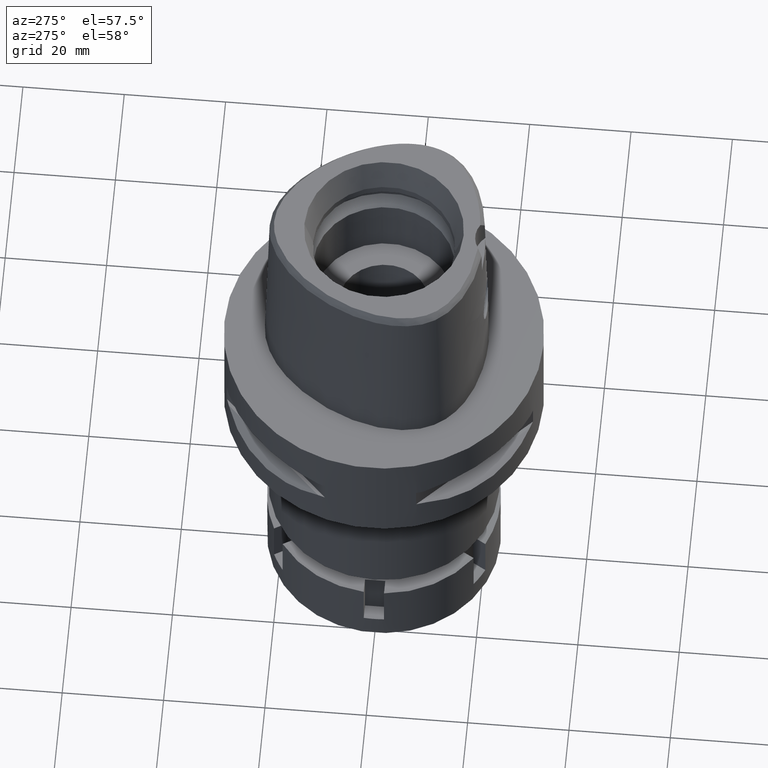
[diagram: clean part render]
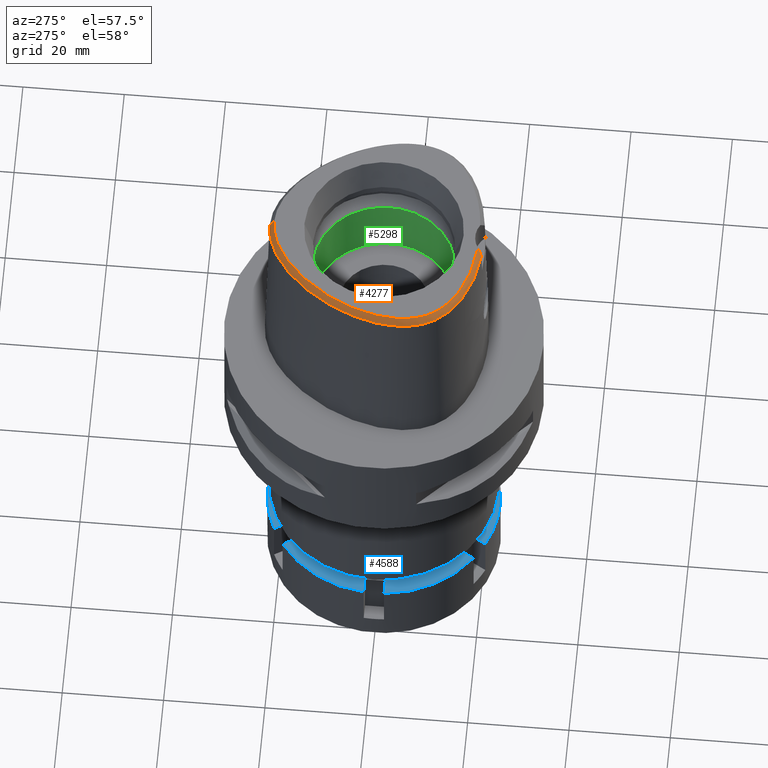
[diagram: same view with three faces highlighted in distinct colors, each labeled with its STEP entity id]
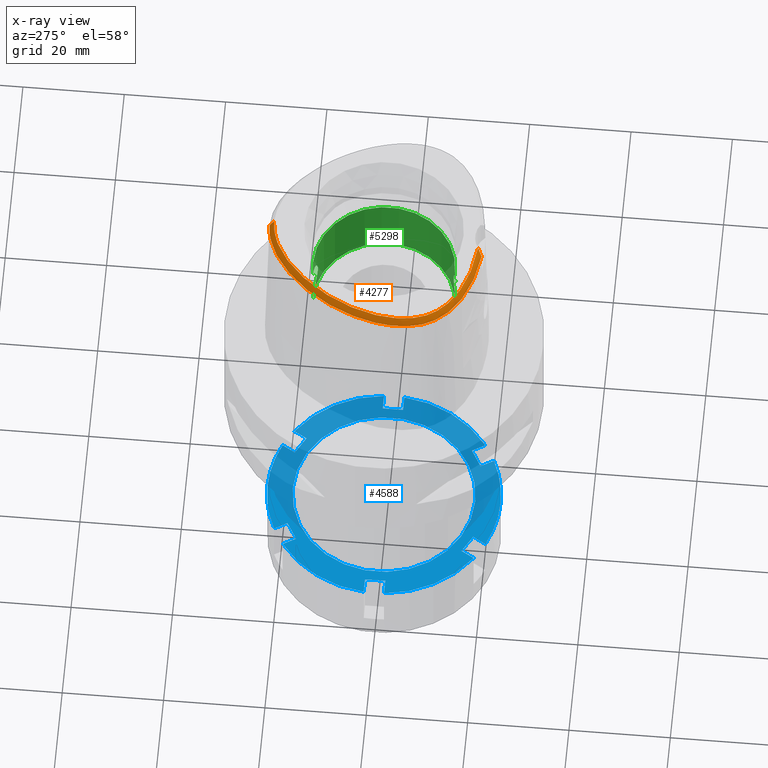
[diagram: x-ray of the same camera — body ghosted, the three highlighted faces saturated]
A machine part, auxiliary view with three faces highlighted in distinct colors.
The next image is the same camera in x-ray (body ghosted, the three faces saturated) — at least one of them is partly hidden behind the body in this view.
Their STEP definitions:

[orange] entity #4277 — the highlighted face is a freeform B-spline surface patch.
#10 = CARTESIAN_POINT ( 'NONE',  ( -6.172358729914000364, -18.23510545381000014, 38.14312048416000067 ) ) ;
#17 = CARTESIAN_POINT ( 'NONE',  ( -10.90283133293999995, 17.31730328601000224, 36.96684046570999982 ) ) ;
#45 = CARTESIAN_POINT ( 'NONE',  ( -14.34402387966321513, 12.54761970512633518, 38.00000000000000000 ) ) ;
#46 = CARTESIAN_POINT ( 'NONE',  ( -8.527669803453999720, 18.37856381960000363, 38.14312051483000232 ) ) ;
#75 = CARTESIAN_POINT ( 'NONE',  ( -0.6498990081535477303, 21.67378274708112329, 37.99999999999444356 ) ) ;
#76 = CARTESIAN_POINT ( 'NONE',  ( -7.608329073442000379, 19.02394666121999833, 38.14312046498999820 ) ) ;
#97 = CARTESIAN_POINT ( 'NONE',  ( -20.15090095364728029, -7.024227649787813554, 38.00000000000594724 ) ) ;
#100 = CARTESIAN_POINT ( 'NONE',  ( -9.470335476763001026, 17.64029008361000095, 38.14312033440999983 ) ) ;
#123 = CARTESIAN_POINT ( 'NONE',  ( -6.014637190468000050, 20.36636864645999978, 37.55497937354999749 ) ) ;
#157 = CARTESIAN_POINT ( 'NONE',  ( -20.07635106149000137, -1.022380499504999873, 38.14312042382000101 ) ) ;
#181 = CARTESIAN_POINT ( 'NONE',  ( -17.52778525457000214, 7.062320995560999570, 38.14312037828000257 ) ) ;
#191 = VERTEX_POINT ( 'NONE', #3794 ) ;
#196 = CARTESIAN_POINT ( 'NONE',  ( -21.32871527670028300, -4.105831244393650437, 36.52186244848003582 ) ) ;
#209 = CARTESIAN_POINT ( 'NONE',  ( -21.01228491991000169, -4.317126647866000866, 36.96683803785000322 ) ) ;
#216 = CARTESIAN_POINT ( 'NONE',  ( -2.315017274271999881, -19.42118252092999953, 36.96683853137000142 ) ) ;
#222 = CARTESIAN_POINT ( 'NONE',  ( -2.884826279556000017, 21.93890452642999733, 36.96683830165999751 ) ) ;
#240 = CARTESIAN_POINT ( 'NONE',  ( -20.88237412952999961, 0.4161392543613000039, 36.37870014285000053 ) ) ;
#253 = CARTESIAN_POINT ( 'NONE',  ( -1.479165636536000032E-11, 22.56201468012000078, 36.52186680743999858 ) ) ;
#265 = CARTESIAN_POINT ( 'NONE',  ( -18.71688440148999888, 4.227265373670000770, 38.14312052250000562 ) ) ;
#288 = CARTESIAN_POINT ( 'NONE',  ( -13.79156980119999965, -16.69564244759999738, 36.37869659835000391 ) ) ;
#295 = CARTESIAN_POINT ( 'NONE',  ( -4.706994425064517706, -18.56721852572872677, 38.00000000000449063 ) ) ;
#318 = CARTESIAN_POINT ( 'NONE',  ( -10.49043876236000017, -18.15172168595000102, 36.37869923510000092 ) ) ;
#329 = CARTESIAN_POINT ( 'NONE',  ( -2.130100179164999830, 22.10404749391000223, 36.96683792194999540 ) ) ;
#345 = CARTESIAN_POINT ( 'NONE',  ( -19.19924463931000247, -11.35280967495999960, 36.96683805520000021 ) ) ;
#368 = CARTESIAN_POINT ( 'NONE',  ( -19.49705941400000242, -11.53337866326999972, 36.37869685704999512 ) ) ;
#377 = CARTESIAN_POINT ( 'NONE',  ( -0.6664107909163999865, 21.93678955534999986, 37.55497913451999636 ) ) ;
#397 = CARTESIAN_POINT ( 'NONE',  ( -14.34793255970999937, -15.56970078162999904, 37.55497933430999780 ) ) ;
#428 = CARTESIAN_POINT ( 'NONE',  ( -7.744146218554000427, -18.60437430078999910, 36.96683980761999777 ) ) ;
#436 = CARTESIAN_POINT ( 'NONE',  ( -18.67608643721939643, -11.03561202291267662, 38.00000000000157030 ) ) ;
#437 = CARTESIAN_POINT ( 'NONE',  ( -4.472375891971999806, 21.43825395942999990, 36.96683791461000368 ) ) ;
#460 = CARTESIAN_POINT ( 'NONE',  ( -20.38301517462918966, -3.278344853327717967, 37.99999999999993605 ) ) ;
#461 = CARTESIAN_POINT ( 'NONE',  ( -15.75631191895000072, 11.59572451376000046, 36.96683856557999803 ) ) ;
#491 = CARTESIAN_POINT ( 'NONE',  ( -19.94188961899422097, 0.2242544969878482453, 38.00000000000526512 ) ) ;
#492 = CARTESIAN_POINT ( 'NONE',  ( -6.334712997255999234, 20.98491804849999909, 36.37869729492999937 ) ) ;
#524 = CARTESIAN_POINT ( 'NONE',  ( -19.54919922642054075, -9.228169790568536257, 38.00000000000173372 ) ) ;
#525 = CARTESIAN_POINT ( 'NONE',  ( -16.04628733631999893, 11.78844913660000060, 36.37869765796000365 ) ) ;
#549 = CARTESIAN_POINT ( 'NONE',  ( -12.89683505678000053, 15.29930142657999959, 36.96683848368999747 ) ) ;
#571 = CARTESIAN_POINT ( 'NONE',  ( -19.12811945904000410, 6.042527119368000577, 36.37869699235000098 ) ) ;
#602 = CARTESIAN_POINT ( 'NONE',  ( -20.23677303111000114, 1.672384684039999847, 36.96684062652000335 ) ) ;
#610 = CARTESIAN_POINT ( 'NONE',  ( -2.713915253825999852, -19.74187109817999897, 36.37869765541000788 ) ) ;
#617 = CARTESIAN_POINT ( 'NONE',  ( -3.637738201363999835, -19.56971413236999879, 36.52186244848000030 ) ) ;
#626 = CARTESIAN_POINT ( 'NONE',  ( -18.80704506084000016, 5.907836934905000170, 36.96683814142000557 ) ) ;
#635 = CARTESIAN_POINT ( 'NONE',  ( -2.106152308867000222, -19.43403575124999705, 36.96683849766999685 ) ) ;
#654 = CARTESIAN_POINT ( 'NONE',  ( -20.41019488210000077, -7.071133436942000472, 37.55497914998999676 ) ) ;
#667 = CARTESIAN_POINT ( 'NONE',  ( -21.14970188363737691, -6.717195958887470120, 36.52186244848003582 ) ) ;
#686 = CARTESIAN_POINT ( 'NONE',  ( -20.24029308825000228, -7.871947082467000811, 37.55497916500999622 ) ) ;
#711 = CARTESIAN_POINT ( 'NONE',  ( -13.62579215947999955, -16.38941694118999948, 36.96683789034999990 ) ) ;
#734 = CARTESIAN_POINT ( 'NONE',  ( -18.81983401836000169, -11.93710859722999906, 36.96683774995999983 ) ) ;
#763 = CARTESIAN_POINT ( 'NONE',  ( -18.92010309775000110, -10.43041603326000022, 38.14312049387000059 ) ) ;
#788 = CARTESIAN_POINT ( 'NONE',  ( -16.99447608723000158, -14.48531509470000245, 36.37869647172999521 ) ) ;
#813 = CARTESIAN_POINT ( 'NONE',  ( -18.24789301947999931, -11.53954573638000092, 38.14312049380000502 ) ) ;
#841 = CARTESIAN_POINT ( 'NONE',  ( -4.842819134059999975, -19.51737842684000057, 36.37869669442000031 ) ) ;
#854 = CARTESIAN_POINT ( 'NONE',  ( -18.24302769442606120, 5.671232572958836649, 37.99999999999507594 ) ) ;
#855 = CARTESIAN_POINT ( 'NONE',  ( -0.02613235322431000165, 21.95682257771000323, 37.55497928851999490 ) ) ;
#877 = VERTEX_POINT ( 'NONE', #4328 ) ;
#879 = CARTESIAN_POINT ( 'NONE',  ( -11.46564124494196513, 15.92741340513292769, 37.99999999999345590 ) ) ;
#880 = CARTESIAN_POINT ( 'NONE',  ( -8.735403671188999297, 18.65801898231000067, 37.55497905650000234 ) ) ;
#903 = CARTESIAN_POINT ( 'NONE',  ( -19.64434054693244391, 1.520253387635722042, 37.99999999999833733 ) ) ;
#904 = CARTESIAN_POINT ( 'NONE',  ( -3.560312100782999867, 21.38638953563000200, 37.55497932421999963 ) ) ;
#907 = ORIENTED_EDGE ( 'NONE', *, *, #1683, .F. ) ;
#924 = ORIENTED_EDGE ( 'NONE', *, *, #1480, .F. ) ;
#929 = CARTESIAN_POINT ( 'NONE',  ( -16.93638123745951773, -13.22593246128242583, 37.99999999999400302 ) ) ;
#930 = CARTESIAN_POINT ( 'NONE',  ( -9.150871406661000407, 19.21692930773000185, 36.37869613984999972 ) ) ;
#956 = CARTESIAN_POINT ( 'NONE',  ( -7.655222869372892980, 19.09452359226769502, 37.99999999999257483 ) ) ;
#957 = CARTESIAN_POINT ( 'NONE',  ( -10.66760768456000008, 17.06057420840000205, 37.55498029165999441 ) ) ;
#983 = CARTESIAN_POINT ( 'NONE',  ( -17.11867683920999994, 8.642284011690998469, 37.55497930546999896 ) ) ;
#998 = CARTESIAN_POINT ( 'NONE',  ( -2.682279906006999948, -18.78035848609999903, 38.00000000000000000 ) ) ;
#1008 = CARTESIAN_POINT ( 'NONE',  ( -19.79599746667999938, -9.320539509809002254, 37.55497932521999616 ) ) ;
#1039 = CARTESIAN_POINT ( 'NONE',  ( -18.15639621356999811, 7.361926374125999928, 36.96683858382999688 ) ) ;
#1068 = CARTESIAN_POINT ( 'NONE',  ( -19.90183270780000058, -7.789943949808000312, 38.14312047992999766 ) ) ;
#1079 = CARTESIAN_POINT ( 'NONE',  ( -3.637738201363999835, -19.56971413236999879, 36.52186244848000030 ) ) ;
#1093 = CARTESIAN_POINT ( 'NONE',  ( -20.56719263367000039, -2.151574652526999643, 37.55497908015999542 ) ) ;
#1110 = CARTESIAN_POINT ( 'NONE',  ( -16.39211280192055398, -14.95758113318568761, 36.52186244848003582 ) ) ;
#1129 = CARTESIAN_POINT ( 'NONE',  ( -13.29423687605000026, -15.77696592837000011, 38.14312047435999631 ) ) ;
#1152 = CARTESIAN_POINT ( 'NONE',  ( -10.37469055572000087, -17.82332414536999821, 36.96683957060000125 ) ) ;
#1176 = CARTESIAN_POINT ( 'NONE',  ( -9.104110351916999022, -18.23638403446999945, 36.96684057638999832 ) ) ;
#1185 = CARTESIAN_POINT ( 'NONE',  ( -1.443023752823999750, 22.56359931144000086, 36.37869608058000637 ) ) ;
#1207 = CARTESIAN_POINT ( 'NONE',  ( -9.005050378846000569, -17.90257881421999997, 37.55498033932999391 ) ) ;
#1215 = CARTESIAN_POINT ( 'NONE',  ( -2.682279906006999948, -18.78035848609999903, 38.00000000000000000 ) ) ;
#1217 = CARTESIAN_POINT ( 'NONE',  ( 0.6284954758768001026, 22.28182517790000006, 36.96683762530999928 ) ) ;
#1233 = CARTESIAN_POINT ( 'NONE',  ( -15.88018046876000078, -14.50601960284000036, 37.55497923883999789 ) ) ;
#1256 = CARTESIAN_POINT ( 'NONE',  ( -4.695004505866998912, -18.48334320935000008, 38.14312046588000271 ) ) ;
#1263 = CARTESIAN_POINT ( 'NONE',  ( -15.71788912669431681, -14.29843101566143027, 37.99999999999405276 ) ) ;
#1295 = CARTESIAN_POINT ( 'NONE',  ( -19.26324493738955113, 2.868570891457154381, 37.99999999999809575 ) ) ;
#1296 = CARTESIAN_POINT ( 'NONE',  ( -4.348380807560999983, 21.11283326082000045, 37.55497919279999053 ) ) ;
#1322 = CARTESIAN_POINT ( 'NONE',  ( -10.48962422759879054, 16.86631853279006776, 38.00000000000246558 ) ) ;
#1324 = CARTESIAN_POINT ( 'NONE',  ( -7.801035098558999792, 19.31397649516999948, 37.55497921143999918 ) ) ;
#1346 = CARTESIAN_POINT ( 'NONE',  ( -10.13608276333999925, 18.44526072089999857, 36.37869818363999741 ) ) ;
#1370 = CARTESIAN_POINT ( 'NONE',  ( -16.88647904405548061, 8.517821442303015189, 38.00000000000065370 ) ) ;
#1371 = CARTESIAN_POINT ( 'NONE',  ( -13.60890350602999987, 13.92872315494000013, 37.55497906080000092 ) ) ;
#1401 = CARTESIAN_POINT ( 'NONE',  ( -16.62286541705999809, 10.22286068748999988, 36.96683794347999452 ) ) ;
#1425 = CARTESIAN_POINT ( 'NONE',  ( -20.54054746055000180, -6.213796886943999453, 37.55497932512999881 ) ) ;
#1434 = CARTESIAN_POINT ( 'NONE',  ( -2.631985306655999945, -18.70089602028000186, 38.14312038103999924 ) ) ;
#1450 = CARTESIAN_POINT ( 'NONE',  ( -20.20003697466000148, 0.2769236713901000457, 37.55498015526000444 ) ) ;
#1464 = CARTESIAN_POINT ( 'NONE',  ( -2.127524465131999776, -19.78142788622999859, 36.37869755139000461 ) ) ;
#1480 = EDGE_CURVE ( 'NONE', #191, #1734, #4279, .T. ) ;
#1490 = CARTESIAN_POINT ( 'NONE',  ( -21.34195743996999894, -3.235193005388000032, 36.37869662899999668 ) ) ;
#1499 = CARTESIAN_POINT ( 'NONE',  ( -2.686605271436000475, -19.39487940555000023, 36.96683856395999612 ) ) ;
#1514 = CARTESIAN_POINT ( 'NONE',  ( -20.18003672357999889, 3.152778874460000047, 36.37869872513000757 ) ) ;
#1538 = CARTESIAN_POINT ( 'NONE',  ( -19.85886839721999664, 0.2073158799043999800, 38.14312016147000151 ) ) ;
#1572 = CARTESIAN_POINT ( 'NONE',  ( -12.78252178546000017, -17.20841056235000011, 36.37869647960999941 ) ) ;
#1580 = CARTESIAN_POINT ( 'NONE',  ( -6.188376196366981219, -18.31830638231314623, 37.99999999999720046 ) ) ;
#1597 = CARTESIAN_POINT ( 'NONE',  ( -18.66308779236000248, -12.73330211378999977, 36.37869726617999788 ) ) ;
#1612 = B_SPLINE_CURVE_WITH_KNOTS ( 'NONE', 3,
 ( #2277, #3214, #2326, #5211, #5274, #1110, #2693, #4838, #4007, #2302, #4446, #667, #196, #1860, #3981, #2358, #4776, #3190, #3958, #4036, #4359, #3162, #253 ),
 .UNSPECIFIED., .F., .F.,
 ( 4, 1, 1, 1, 1, 1, 1, 1, 1, 1, 1, 1, 1, 1, 1, 1, 1, 1, 1, 1, 4 ),
 ( 0.0000000000000000000, 0.03580973941716571185, 0.1234633994701219151, 0.1672902294965474546, 0.2111170595229729940, 0.2549438895495037549, 0.2768573045626113727, 0.2987707195758241285, 0.3206841345891420225, 0.3425975496022496403, 0.3864243796287802901, 0.4302512096551006082, 0.4740780396816314246, 0.5617316997344824481, 0.6493853597874387207, 0.7370390198402897441, 0.8246926798930356295, 0.8685195099195662793, 0.9123463399460023382, 0.9561731699724383970, 1.000000000000000000 ),
 .UNSPECIFIED. ) ;
#1621 = CARTESIAN_POINT ( 'NONE',  ( -11.55059938487999993, -17.37365860958000141, 36.96683777062000331 ) ) ;
#1648 = CARTESIAN_POINT ( 'NONE',  ( -16.30434422615999779, -13.70096280939000088, 38.14312048552999812 ) ) ;
#1674 = CARTESIAN_POINT ( 'NONE',  ( -15.15317434001999963, -15.04265820961999900, 37.55497946367000139 ) ) ;
#1682 = CARTESIAN_POINT ( 'NONE',  ( -10.17136073855374789, -17.24644253470380306, 38.00000000000444800 ) ) ;
#1683 = EDGE_CURVE ( 'NONE', #1734, #877, #1612, .T. ) ;
#1684 = CARTESIAN_POINT ( 'NONE',  ( 0.4011216119676999647, 21.94512499957000173, 37.55497919860000167 ) ) ;
#1702 = CARTESIAN_POINT ( 'NONE',  ( -6.304003534149000387, -18.91891958741999602, 36.96683781955000114 ) ) ;
#1709 = CARTESIAN_POINT ( 'NONE',  ( -15.46633650158000073, 11.40299989092999944, 37.55497947319999952 ) ) ;
#1734 = VERTEX_POINT ( 'NONE', #1079 ) ;
#1738 = CARTESIAN_POINT ( 'NONE',  ( -12.44116897271573130, 14.89128547410139980, 37.99999999999814548 ) ) ;
#1739 = CARTESIAN_POINT ( 'NONE',  ( -11.40536274247999948, 15.86786792183000117, 38.14312013480999752 ) ) ;
#1764 = CARTESIAN_POINT ( 'NONE',  ( -20.40060226223202378, -4.311417605381138607, 37.99999999999957367 ) ) ;
#1765 = CARTESIAN_POINT ( 'NONE',  ( -11.13805498131999805, 17.57403236361999888, 36.37870063977000257 ) ) ;
#1787 = CARTESIAN_POINT ( 'NONE',  ( -19.78262210840363622, -8.543146992552966168, 38.00000000000376588 ) ) ;
#1788 = CARTESIAN_POINT ( 'NONE',  ( -14.14956403363000170, 14.36759962649999878, 36.37869615550000191 ) ) ;
#1812 = ORIENTED_EDGE ( 'NONE', *, *, #3130, .T. ) ;
#1818 = CARTESIAN_POINT ( 'NONE',  ( -8.943137538925000740, 18.93747414501999771, 36.96683759817999970 ) ) ;
#1848 = CARTESIAN_POINT ( 'NONE',  ( -20.27942425223000100, -5.272988855186000023, 38.14312038142000461 ) ) ;
#1860 = CARTESIAN_POINT ( 'NONE',  ( -21.07430010672997867, -0.4408303445193214043, 36.52186244848003582 ) ) ;
#1874 = CARTESIAN_POINT ( 'NONE',  ( -20.44833654894999952, -9.564691890379000583, 36.37869711883000434 ) ) ;
#1883 = CARTESIAN_POINT ( 'NONE',  ( -3.513989530643999881, -18.62387437838000182, 38.14312039085000094 ) ) ;
#1900 = CARTESIAN_POINT ( 'NONE',  ( -20.97442672642999995, -5.318043418287999202, 36.96683856120000655 ) ) ;
#1929 = CARTESIAN_POINT ( 'NONE',  ( -20.19486654437999817, -6.171670362016000055, 38.14312042843000228 ) ) ;
#1952 = CARTESIAN_POINT ( 'NONE',  ( -20.70049677796000154, -8.824513061623001420, 36.37869663776000806 ) ) ;
#1976 = CARTESIAN_POINT ( 'NONE',  ( -12.48419278845999969, -16.57912096287999759, 37.55497914976000118 ) ) ;
#2008 = CARTESIAN_POINT ( 'NONE',  ( -19.22874353621000054, -10.59178206426000024, 37.55497912166999441 ) ) ;
#2033 = CARTESIAN_POINT ( 'NONE',  ( -17.84358120225000022, -12.08521170620999818, 38.14312041539999854 ) ) ;
#2056 = CARTESIAN_POINT ( 'NONE',  ( -16.76443213354000150, -14.22386433293000074, 36.96683780965999944 ) ) ;
#2066 = CARTESIAN_POINT ( 'NONE',  ( -0.6882328290465999920, 22.28438040478000204, 36.96683777930999781 ) ) ;
#2089 = CARTESIAN_POINT ( 'NONE',  ( -17.90704449045999880, -13.09166603947000063, 36.96683796721000448 ) ) ;
#2115 = CARTESIAN_POINT ( 'NONE',  ( -7.826561719558000618, -18.94266890600000153, 36.37869960705000238 ) ) ;
#2123 = CARTESIAN_POINT ( 'NONE',  ( -5.023560462569999885, 20.45712644606000197, 38.14312042509000378 ) ) ;
#2146 = CARTESIAN_POINT ( 'NONE',  ( -16.36032397154120588, -13.76458520345357250, 37.99999999999922551 ) ) ;
#2148 = CARTESIAN_POINT ( 'NONE',  ( -17.42555037371000282, 8.806774241053000551, 36.96683817618000489 ) ) ;
#2179 = CARTESIAN_POINT ( 'NONE',  ( -18.99520880203909101, -10.46968343926526046, 38.00000000000003553 ) ) ;
#2180 = CARTESIAN_POINT ( 'NONE',  ( -10.43238403618000021, 16.80384513079000186, 38.14312011759999166 ) ) ;
#2206 = CARTESIAN_POINT ( 'NONE',  ( -15.00295592774140019, -14.82617991126211798, 37.99999999999914024 ) ) ;
#2207 = CARTESIAN_POINT ( 'NONE',  ( -4.596370976383000517, 21.76367465805000023, 36.37869663642000262 ) ) ;
#2230 = CARTESIAN_POINT ( 'NONE',  ( -13.87923376982999990, 14.14816139072000034, 36.96683760815000142 ) ) ;
#2262 = CARTESIAN_POINT ( 'NONE',  ( -20.06751098948000234, -7.009142561087999823, 38.14312048476999450 ) ) ;
#2277 = CARTESIAN_POINT ( 'NONE',  ( -3.637738201363999835, -19.56971413236999879, 36.52186244848000030 ) ) ;
#2291 = CARTESIAN_POINT ( 'NONE',  ( -20.88622837671999832, -6.255923411871999740, 36.96683822183999979 ) ) ;
#2302 = CARTESIAN_POINT ( 'NONE',  ( -20.09619618741146141, -10.23243843868293901, 36.52186244848003582 ) ) ;
#2313 = CARTESIAN_POINT ( 'NONE',  ( -20.99409315848000190, -3.250846697086999804, 36.96683790987999885 ) ) ;
#2326 = CARTESIAN_POINT ( 'NONE',  ( -7.300578999876314867, -19.07170748891964251, 36.52186244848003582 ) ) ;
#2341 = CARTESIAN_POINT ( 'NONE',  ( -19.18231518964000060, 2.843482446382000095, 38.14312028660999232 ) ) ;
#2358 = CARTESIAN_POINT ( 'NONE',  ( -17.27359245833573453, 9.972912913898301923, 36.52186244848003582 ) ) ;
#2373 = CARTESIAN_POINT ( 'NONE',  ( -20.91721384913000037, -8.035953347783999945, 36.37869653517000046 ) ) ;
#2381 = CARTESIAN_POINT ( 'NONE',  ( -2.659295289046000210, -19.04788771290999705, 37.55497947250000124 ) ) ;
#2396 = CARTESIAN_POINT ( 'NONE',  ( -17.64754726618000191, -12.85940042090000013, 37.55497921546000129 ) ) ;
#2416 = CARTESIAN_POINT ( 'NONE',  ( -17.38805004190999881, -12.62713480234000052, 38.14312046371000520 ) ) ;
#2426 = CARTESIAN_POINT ( 'NONE',  ( 0.5898870318244999744, 21.58683101671000060, 38.14312051107000201 ) ) ;
#2455 = CARTESIAN_POINT ( 'NONE',  ( -14.16566149335000091, -15.27298775767000016, 38.14312042547999937 ) ) ;
#2479 = CARTESIAN_POINT ( 'NONE',  ( -16.53438817985000142, -13.96241357115999904, 37.55497914759999389 ) ) ;
#2487 = CARTESIAN_POINT ( 'NONE',  ( 0.6091912538505999120, 21.93432809731000077, 37.55497906819000775 ) ) ;
#2503 = CARTESIAN_POINT ( 'NONE',  ( -16.09466535536000009, -14.78036950967999985, 36.96683802148999831 ) ) ;
#2511 = CARTESIAN_POINT ( 'NONE',  ( -2.001361277813999973, 21.41952064817999712, 38.14312046997000039 ) ) ;
#2534 = CARTESIAN_POINT ( 'NONE',  ( -4.744276048598000450, -18.82802161517999906, 37.55497920871999185 ) ) ;
#2543 = CARTESIAN_POINT ( 'NONE',  ( -0.2181979014508676762, 21.68728795389064601, 37.99999999999275246 ) ) ;
#2546 = CARTESIAN_POINT ( 'NONE',  ( -1.313138995135000098, 21.52689682219000034, 38.14312052006000187 ) ) ;
#2563 = VERTEX_POINT ( 'NONE', #4432 ) ;
#2568 = CARTESIAN_POINT ( 'NONE',  ( -20.36398648679638868, -5.278470727085379899, 37.99999999999672440 ) ) ;
#2569 = CARTESIAN_POINT ( 'NONE',  ( -13.15622904431999984, 15.53156994205999908, 36.37869752945000101 ) ) ;
#2592 = CARTESIAN_POINT ( 'NONE',  ( -4.254559144978006913, 20.86660163697580828, 37.99999999999677414 ) ) ;
#2593 = CARTESIAN_POINT ( 'NONE',  ( -7.070025205071999608, 20.18153571931999934, 36.96683793447000710 ) ) ;
#2624 = CARTESIAN_POINT ( 'NONE',  ( -19.98419490691567901, -7.809898894995969343, 37.99999999999875655 ) ) ;
#2625 = CARTESIAN_POINT ( 'NONE',  ( -15.17636108421000074, 11.21027526809999841, 38.14312038082000100 ) ) ;
#2651 = CARTESIAN_POINT ( 'NONE',  ( -20.27898581532774358, -6.181921586190500584, 37.99999999999534595 ) ) ;
#2652 = CARTESIAN_POINT ( 'NONE',  ( -11.65307206903000115, 16.11256496912999836, 37.55498023810999797 ) ) ;
#2677 = CARTESIAN_POINT ( 'NONE',  ( -20.57875346869000310, -7.953950215124998557, 36.96683785009000189 ) ) ;
#2693 = CARTESIAN_POINT ( 'NONE',  ( -17.90324032097040075, -13.53935111955661164, 36.52186244848003582 ) ) ;
#2715 = CARTESIAN_POINT ( 'NONE',  ( -18.16489626445000027, 5.638456565980000335, 38.14312043956999787 ) ) ;
#2732 = DIRECTION ( 'NONE',  ( -1.159489993694014793E-11, -0.5092834681090075977, 0.8605988316927122295 ) ) ;
#2744 = CARTESIAN_POINT ( 'NONE',  ( -18.48597066263999977, 5.773146750442999853, 37.55497929048999595 ) ) ;
#2769 = CARTESIAN_POINT ( 'NONE',  ( -19.69839032735999851, 4.584668022487000449, 36.37869605281999696 ) ) ;
#2795 = CARTESIAN_POINT ( 'NONE',  ( -20.64622887699000131, -3.266500388786000020, 37.55497919075999391 ) ) ;
#2827 = CARTESIAN_POINT ( 'NONE',  ( -19.53738397466999999, -10.75314809526999937, 36.96683774946999534 ) ) ;
#2850 = CARTESIAN_POINT ( 'NONE',  ( -19.10580451779000200, -12.13589002765999858, 36.37869637803999723 ) ) ;
#2859 = CARTESIAN_POINT ( 'NONE',  ( -1.356433914364999938, 21.87246431860999962, 37.55497904023000189 ) ) ;
#2864 = B_SPLINE_SURFACE_WITH_KNOTS ( 'NONE', 3, 3, ( 
 ( #2426, #2487, #1217, #4113 ),
 ( #4627, #1684, #3368, #2913 ),
 ( #5038, #855, #2932, #4579 ),
 ( #4166, #377, #2066, #5426 ),
 ( #2546, #2859, #4600, #1185 ),
 ( #2511, #4191, #329, #3708 ),
 ( #4959, #5275, #222, #5375 ),
 ( #3472, #904, #4687, #4222 ),
 ( #3806, #1296, #437, #2207 ),
 ( #2123, #3830, #4247, #3012 ),
 ( #3912, #123, #3864, #492 ),
 ( #5114, #4301, #2593, #4741 ),
 ( #76, #1324, #4270, #3888 ),
 ( #46, #880, #1818, #930 ),
 ( #100, #3507, #2990, #1346 ),
 ( #2180, #957, #17, #1765 ),
 ( #1739, #2652, #5063, #5138 ),
 ( #4324, #4661, #549, #2569 ),
 ( #3424, #1371, #2230, #1788 ),
 ( #5172, #3036, #3450, #4710 ),
 ( #2625, #1709, #461, #525 ),
 ( #3391, #3069, #1401, #3096 ),
 ( #4765, #983, #2148, #5091 ),
 ( #181, #3943, #1039, #4381 ),
 ( #2715, #2744, #626, #571 ),
 ( #265, #5198, #4409, #2769 ),
 ( #2341, #4874, #5262, #1514 ),
 ( #3643, #3620, #602, #5310 ),
 ( #1538, #1450, #3994, #240 ),
 ( #157, #5225, #4024, #3203 ),
 ( #5286, #1093, #3230, #3555 ),
 ( #4900, #2795, #2313, #1490 ),
 ( #4851, #3149, #209, #4434 ),
 ( #1848, #4825, #1900, #3529 ),
 ( #1929, #1425, #2291, #4466 ),
 ( #2262, #654, #3588, #3178 ),
 ( #1068, #686, #2677, #2373 ),
 ( #3118, #4348, #4049, #1952 ),
 ( #4789, #1008, #3970, #1874 ),
 ( #4592, #4570, #3700, #3337 ),
 ( #763, #2008, #2827, #3775 ),
 ( #5366, #4158, #345, #368 ),
 ( #813, #4099, #734, #2850 ),
 ( #2033, #4540, #3258, #1597 ),
 ( #2416, #2396, #2089, #3742 ),
 ( #5005, #3672, #5413, #2923 ),
 ( #1648, #2479, #2056, #788 ),
 ( #3722, #1233, #2503, #5445 ),
 ( #4516, #1674, #4180, #3360 ),
 ( #2455, #397, #3305, #4073 ),
 ( #1129, #4492, #711, #288 ),
 ( #4133, #1976, #5339, #1572 ),
 ( #4948, #5391, #1621, #4977 ),
 ( #2875, #4926, #1152, #318 ),
 ( #3283, #1207, #1176, #2903 ),
 ( #2946, #4213, #428, #2115 ),
 ( #10, #3798, #1702, #5030 ),
 ( #1256, #2534, #4615, #841 ),
 ( #1883, #4835, #4442, #4032 ),
 ( #1434, #2381, #1499, #610 ),
 ( #4057, #3537, #216, #4859 ),
 ( #3187, #4798, #635, #1464 ) ),
 .UNSPECIFIED., .F., .F., .F.,
 ( 4, 1, 1, 1, 1, 1, 1, 1, 1, 1, 1, 1, 1, 1, 1, 1, 1, 1, 1, 1, 1, 1, 1, 1, 1, 1, 1, 1, 1, 1, 1, 1, 1, 1, 1, 1, 1, 1, 1, 1, 1, 1, 1, 1, 1, 1, 1, 1, 1, 1, 1, 1, 1, 1, 1, 1, 1, 1, 1, 4 ),
 ( 4, 4 ),
 ( -0.01585043674195000044, 0.0000000000000000000, 0.01776034072165999858, 0.03552068144391999638, 0.05328102216616999870, 0.07104136288842999303, 0.08880170361069000817, 0.1065620443330000111, 0.1243223850551999909, 0.1420827257775000019, 0.1598430664997000095, 0.1776034072219000171, 0.1953637479442000002, 0.2131240886664000078, 0.2308844293887999943, 0.2486447701109999742, 0.2664051108332999851, 0.2841654515554999927, 0.3019257922778000314, 0.3196861329999999835, 0.3374464737223000221, 0.3552068144444999742, 0.3729671551668000129, 0.3907274958890999961, 0.4084878366113000037, 0.4262481773335999868, 0.4440085180557999944, 0.4617688587780999776, 0.4795291995003000407, 0.4972895402225999684, 0.5150498809447999760, 0.5328102216671000146, 0.5505705623893999423, 0.5683309031115999499, 0.5860912438338999886, 0.6038515845561001072, 0.6216119252783999238, 0.6393722660005999314, 0.6571326067228999701, 0.6748929474452000088, 0.6926532881674000164, 0.7104136288896999440, 0.7281739696118999516, 0.7459343103341999903, 0.7636946510563999979, 0.7814549917787000366, 0.7992153325008999332, 0.8169756732231999719, 0.8347360139455000105, 0.8524963546678000492, 0.8702566953900000568, 0.8880170361122000644, 0.9057773768344999921, 0.9235377175566999997, 0.9412980582790000383, 0.9590583990012000459, 0.9768187397236000047, 0.9945790804457999013, 1.000000000000000000, 1.006922200500000031 ),
 ( -0.07386985160747999712, 1.073897153921000047 ),
 .UNSPECIFIED. ) ;
#2875 = CARTESIAN_POINT ( 'NONE',  ( -10.14319414242000050, -17.16652906421000324, 38.14312024160000192 ) ) ;
#2903 = CARTESIAN_POINT ( 'NONE',  ( -9.203170324987000939, -18.57018925471999893, 36.37870081345999296 ) ) ;
#2911 = CARTESIAN_POINT ( 'NONE',  ( -3.522896839654153123, -18.70811514173789547, 37.99999999999940314 ) ) ;
#2913 = CARTESIAN_POINT ( 'NONE',  ( 0.4269857150547000102, 22.64085810583999958, 36.37869665754000437 ) ) ;
#2923 = CARTESIAN_POINT ( 'NONE',  ( -17.61199216086999897, -13.90797847054999892, 36.37869657327000539 ) ) ;
#2932 = CARTESIAN_POINT ( 'NONE',  ( -0.02688957942308000185, 22.30507604071999950, 36.96683813682999897 ) ) ;
#2946 = CARTESIAN_POINT ( 'NONE',  ( -7.579315216546999245, -17.92778509036000045, 38.14312020875999565 ) ) ;
#2953 = CARTESIAN_POINT ( 'NONE',  ( -1.323674540694511625, 21.61098849315684234, 37.99999999999914024 ) ) ;
#2990 = CARTESIAN_POINT ( 'NONE',  ( -9.914167001143999514, 18.17693717514000085, 36.96683890056000621 ) ) ;
#3011 = CARTESIAN_POINT ( 'NONE',  ( -5.058220461389576705, 20.53445508814749232, 37.99999999999626255 ) ) ;
#3012 = CARTESIAN_POINT ( 'NONE',  ( -5.450857323732000381, 21.41045267710000033, 36.37869715637999946 ) ) ;
#3035 = CARTESIAN_POINT ( 'NONE',  ( -19.28591707036659386, -9.869682450887138359, 37.99999999999221245 ) ) ;
#3036 = CARTESIAN_POINT ( 'NONE',  ( -14.55627137900999912, 12.70369166016000051, 37.55497939619999670 ) ) ;
#3067 = CARTESIAN_POINT ( 'NONE',  ( -15.24692477332593832, 11.25717358966707060, 38.00000000000265032 ) ) ;
#3069 = CARTESIAN_POINT ( 'NONE',  ( -16.32411269461999836, 10.04404473309000068, 37.55497920524000222 ) ) ;
#3096 = CARTESIAN_POINT ( 'NONE',  ( -16.92161813949000049, 10.40167664187999996, 36.37869668172000104 ) ) ;
#3118 = CARTESIAN_POINT ( 'NONE',  ( -19.70159676918000002, -8.518309417283999707, 38.14312047088000668 ) ) ;
#3130 = EDGE_CURVE ( 'NONE', #191, #2563, #4209, .T. ) ;
#3149 = CARTESIAN_POINT ( 'NONE',  ( -20.66407641978999621, -4.313876699391000713, 37.55497924588999581 ) ) ;
#3162 = CARTESIAN_POINT ( 'NONE',  ( -0.7901461696978953064, 22.56201478746964284, 36.52186244848003582 ) ) ;
#3178 = CARTESIAN_POINT ( 'NONE',  ( -21.09556266734000118, -7.195115188652000171, 36.37869648043000126 ) ) ;
#3187 = CARTESIAN_POINT ( 'NONE',  ( -2.063407996336000139, -18.73925148128000018, 38.14312039022999556 ) ) ;
#3190 = CARTESIAN_POINT ( 'NONE',  ( -10.15538788053053487, 18.47129535093841213, 36.52186244848003582 ) ) ;
#3203 = CARTESIAN_POINT ( 'NONE',  ( -21.10919420264999857, -0.8660297250945999670, 36.37869717084000598 ) ) ;
#3214 = CARTESIAN_POINT ( 'NONE',  ( -4.467522189395124244, -19.48130287050788567, 36.52186244848003582 ) ) ;
#3230 = CARTESIAN_POINT ( 'NONE',  ( -20.91372834690000104, -2.117471660835000158, 36.96683765309000336 ) ) ;
#3258 = CARTESIAN_POINT ( 'NONE',  ( -18.38991892898999936, -12.51727197793000101, 36.96683831592000047 ) ) ;
#3283 = CARTESIAN_POINT ( 'NONE',  ( -8.905990405775998653, -17.56877359398000138, 38.14312010226999661 ) ) ;
#3305 = CARTESIAN_POINT ( 'NONE',  ( -14.53020362606999960, -15.86641380559999881, 36.96683824314999356 ) ) ;
#3316 = FACE_OUTER_BOUND ( 'NONE', #4908, .T. ) ;
#3337 = CARTESIAN_POINT ( 'NONE',  ( -20.16268920667000231, -10.26081752005999981, 36.37869684753000143 ) ) ;
#3360 = CARTESIAN_POINT ( 'NONE',  ( -15.55023284865000122, -15.61485537899999976, 36.37869762326000256 ) ) ;
#3367 = CARTESIAN_POINT ( 'NONE',  ( -14.21001600787439756, -15.34519100085975651, 37.99999999999709388 ) ) ;
#3368 = CARTESIAN_POINT ( 'NONE',  ( 0.4140536635112000430, 22.29299155270999933, 36.96683792806999946 ) ) ;
#3390 = CARTESIAN_POINT ( 'NONE',  ( -11.31790883121301583, -16.80796958613770897, 37.99999999999212719 ) ) ;
#3391 = CARTESIAN_POINT ( 'NONE',  ( -16.02535997219000308, 9.865228778700000589, 38.14312046700000280 ) ) ;
#3422 = CARTESIAN_POINT ( 'NONE',  ( -17.60426951087017144, 7.098774535282072584, 37.99999999999323563 ) ) ;
#3424 = CARTESIAN_POINT ( 'NONE',  ( -13.33857324222999985, 13.70928491915999814, 38.14312051344000309 ) ) ;
#3448 = CARTESIAN_POINT ( 'NONE',  ( -6.759433772717683198, 19.65454812512805916, 37.99999999999673861 ) ) ;
#3450 = CARTESIAN_POINT ( 'NONE',  ( -14.83677852279999954, 12.90995697997000136, 36.96683838682000101 ) ) ;
#3471 = CARTESIAN_POINT ( 'NONE',  ( -20.16012968311571285, -1.009698174524256586, 38.00000000000157740 ) ) ;
#3472 = CARTESIAN_POINT ( 'NONE',  ( -3.455515647594000317, 21.05428106750999717, 38.14312042871999608 ) ) ;
#3507 = CARTESIAN_POINT ( 'NONE',  ( -9.692251238954002091, 17.90861362937000223, 37.55497961749000524 ) ) ;
#3529 = CARTESIAN_POINT ( 'NONE',  ( -21.32192796353000119, -5.340570699839000568, 36.37869765109000042 ) ) ;
#3537 = CARTESIAN_POINT ( 'NONE',  ( -2.291512822470000099, -19.07392158056999776, 37.55497945846000363 ) ) ;
#3555 = CARTESIAN_POINT ( 'NONE',  ( -21.26026406012000081, -2.083368669142000140, 36.37869622601999708 ) ) ;
#3570 = CARTESIAN_POINT ( 'NONE',  ( -1.479165636536000032E-11, 22.56201468012000078, 36.52186680743999858 ) ) ;
#3588 = CARTESIAN_POINT ( 'NONE',  ( -20.75287877471999920, -7.133124312796999433, 36.96683781520999901 ) ) ;
#3620 = CARTESIAN_POINT ( 'NONE',  ( -19.89952294865999960, 1.585781917267000019, 37.55498036091999836 ) ) ;
#3643 = CARTESIAN_POINT ( 'NONE',  ( -19.56227286620000072, 1.499179150493000101, 38.14312009532000758 ) ) ;
#3659 = CARTESIAN_POINT ( 'NONE',  ( -3.014271304882063962, -18.99139391535015875, 37.59976690304521441 ) ) ;
#3672 = CARTESIAN_POINT ( 'NONE',  ( -17.12182519892999721, -13.41314274679000107, 37.55497917546999531 ) ) ;
#3700 = CARTESIAN_POINT ( 'NONE',  ( -19.84463282283000041, -10.11893002095999883, 36.96683804914000149 ) ) ;
#3708 = CARTESIAN_POINT ( 'NONE',  ( -2.194469629839999492, 22.44631091676999901, 36.37869664793000624 ) ) ;
#3722 = CARTESIAN_POINT ( 'NONE',  ( -15.66569558217000058, -14.23166969598999998, 38.14312045618000013 ) ) ;
#3742 = CARTESIAN_POINT ( 'NONE',  ( -18.16654171473000190, -13.32393165803999935, 36.37869671896000057 ) ) ;
#3775 = CARTESIAN_POINT ( 'NONE',  ( -19.84602441311999854, -10.91451412628000028, 36.37869637727000338 ) ) ;
#3794 = CARTESIAN_POINT ( 'NONE',  ( -2.682279906006999948, -18.78035848609999903, 38.00000000000000000 ) ) ;
#3798 = CARTESIAN_POINT ( 'NONE',  ( -6.238181132031999532, -18.57701252061000119, 37.55497915184999869 ) ) ;
#3804 = CARTESIAN_POINT ( 'NONE',  ( -8.578220530114409215, 18.44656747108936656, 38.00000000000102318 ) ) ;
#3806 = CARTESIAN_POINT ( 'NONE',  ( -4.224385723149000960, 20.78741256220000011, 38.14312047098999869 ) ) ;
#3829 = CARTESIAN_POINT ( 'NONE',  ( -7.599370508970960003, -18.01010694911684951, 37.99999999999879918 ) ) ;
#3830 = CARTESIAN_POINT ( 'NONE',  ( -5.165992749624000346, 20.77490185639999964, 37.55497933551999523 ) ) ;
#3862 = CARTESIAN_POINT ( 'NONE',  ( -2.017025177696464500, 21.50280829368302093, 37.99999999999393907 ) ) ;
#3864 = CARTESIAN_POINT ( 'NONE',  ( -6.174675093861999642, 20.67564334748000121, 36.96683833424000198 ) ) ;
#3887 = CARTESIAN_POINT ( 'NONE',  ( -18.31748213707427908, -11.58791794387968643, 37.99999999999817391 ) ) ;
#3888 = CARTESIAN_POINT ( 'NONE',  ( -8.186447148794000483, 19.89403616308000267, 36.37869670432999669 ) ) ;
#3912 = CARTESIAN_POINT ( 'NONE',  ( -5.854599287074000458, 20.05709394543999835, 38.14312041286999744 ) ) ;
#3943 = CARTESIAN_POINT ( 'NONE',  ( -17.84209073407000190, 7.212123684843000149, 37.55497948106000194 ) ) ;
#3958 = CARTESIAN_POINT ( 'NONE',  ( -7.108589416785910053, 20.52412325828585082, 36.52186244848003582 ) ) ;
#3970 = CARTESIAN_POINT ( 'NONE',  ( -20.12216700780999901, -9.442615700094000530, 36.96683822201999448 ) ) ;
#3981 = CARTESIAN_POINT ( 'NONE',  ( -19.88562090098154655, 4.345879983791697043, 36.52186244848003582 ) ) ;
#3994 = CARTESIAN_POINT ( 'NONE',  ( -20.54120555208999832, 0.3465314628757000248, 36.96684014906000471 ) ) ;
#4007 = CARTESIAN_POINT ( 'NONE',  ( -19.55745547455581956, -11.29150218116378568, 36.52186244848003582 ) ) ;
#4024 = CARTESIAN_POINT ( 'NONE',  ( -20.76491315560000217, -0.9181466498979999891, 36.96683825516999633 ) ) ;
#4032 = CARTESIAN_POINT ( 'NONE',  ( -3.623800993736999931, -19.66241491477000025, 36.37869754429000579 ) ) ;
#4036 = CARTESIAN_POINT ( 'NONE',  ( -4.757642277158728561, 21.67478330407271514, 36.52186244848003582 ) ) ;
#4049 = CARTESIAN_POINT ( 'NONE',  ( -20.36753010836000044, -8.722445180175999013, 36.96683791547000197 ) ) ;
#4057 = CARTESIAN_POINT ( 'NONE',  ( -2.268008370668999962, -18.72666064020999954, 38.14312038555999607 ) ) ;
#4073 = CARTESIAN_POINT ( 'NONE',  ( -14.71247469241999895, -16.16312682955999591, 36.37869715197999909 ) ) ;
#4080 = CARTESIAN_POINT ( 'NONE',  ( -2.841965291530528681, -18.76757795571863241, 37.99999999999891998 ) ) ;
#4084 = EDGE_CURVE ( 'NONE', #877, #2563, #5161, .T. ) ;
#4099 = CARTESIAN_POINT ( 'NONE',  ( -18.53386351892000050, -11.73832716681000043, 37.55497912187999532 ) ) ;
#4113 = CARTESIAN_POINT ( 'NONE',  ( 0.6477996979029000402, 22.62932225848999934, 36.37869618244000236 ) ) ;
#4133 = CARTESIAN_POINT ( 'NONE',  ( -12.33502828996000034, -16.26447616313999944, 38.14312048482999984 ) ) ;
#4158 = CARTESIAN_POINT ( 'NONE',  ( -18.90142986461999897, -11.17224068665000125, 37.55497925335999554 ) ) ;
#4166 = CARTESIAN_POINT ( 'NONE',  ( -0.6445887527861999811, 21.58919870592000123, 38.14312048973000202 ) ) ;
#4180 = CARTESIAN_POINT ( 'NONE',  ( -15.35170359432999909, -15.32875679431000115, 36.96683854346999709 ) ) ;
#4191 = CARTESIAN_POINT ( 'NONE',  ( -2.065730728490000168, 21.76178407104000101, 37.55497919595999434 ) ) ;
#4209 = B_SPLINE_CURVE_WITH_KNOTS ( 'NONE', 3,
 ( #1215, #4080, #2911, #295, #1580, #3829, #5090, #1682, #3390, #4246, #4709, #3367, #2206, #1263, #2146, #929, #5037, #4299, #3887, #436, #2179, #3035, #524, #1787, #2624, #97, #2651, #2568, #1764, #460, #4686, #3471, #491, #903, #1295, #5137, #854, #3422, #1370, #4626, #3067, #45, #5062, #1738, #879, #1322, #4740, #3804, #956, #3448, #5113, #3011, #2592, #4323, #4269, #3862, #2953, #75, #2543, #4221 ),
 .UNSPECIFIED., .F., .F.,
 ( 4, 1, 1, 1, 1, 1, 1, 1, 1, 1, 1, 1, 1, 1, 1, 1, 1, 1, 1, 1, 1, 1, 1, 1, 1, 1, 1, 1, 1, 1, 1, 1, 1, 1, 1, 1, 1, 1, 1, 1, 1, 1, 1, 1, 1, 1, 1, 1, 1, 1, 1, 1, 1, 1, 1, 1, 1, 4 ),
 ( 0.0000000000000000000, 0.005420919554200098744, 0.02318126027639999531, 0.04094160099879995407, 0.05870194172099996166, 0.07646228244330000035, 0.09422262316550000794, 0.1119829638877999356, 0.1297433046099999432, 0.1475036453321999508, 0.1652639860544999895, 0.1830243267768000281, 0.2007846674991000668, 0.2185450082212999634, 0.2363053489436000021, 0.2540656896658000097, 0.2718260303881000484, 0.2895863711103000560, 0.3073467118325999836, 0.3251070525547999912, 0.3428673932771000299, 0.3606277339994000686, 0.3783880747216000762, 0.3961484154438998928, 0.4139087561661000114, 0.4316690968884000501, 0.4494294376106000577, 0.4671897783328999854, 0.4849501190552000240, 0.5027104597774000316, 0.5204708004996999593, 0.5382311412219000779, 0.5559914819442000056, 0.5737518226664000132, 0.5915121633886999408, 0.6092725041108999484, 0.6270328448331999871, 0.6447931855555000258, 0.6625535262777000334, 0.6803138669999999610, 0.6980742077221999686, 0.7158345484445000073, 0.7335948891667000149, 0.7513552298890000536, 0.7691155706112000612, 0.7868759113336000199, 0.8046362520558000275, 0.8223965927780999552, 0.8401569335002999628, 0.8579172742224999704, 0.8756776149448000091, 0.8934379556670000166, 0.9111982963893099363, 0.9289586371115700070, 0.9467189778338299666, 0.9644793185560800453, 0.9822396592783400049, 1.000000000000000000 ),
 .UNSPECIFIED. ) ;
#4213 = CARTESIAN_POINT ( 'NONE',  ( -7.661730717549999348, -18.26607969556999933, 37.55498000819000026 ) ) ;
#4221 = CARTESIAN_POINT ( 'NONE',  ( -3.470663397168999981E-11, 21.68728795390000030, 38.00000000000000000 ) ) ;
#4222 = CARTESIAN_POINT ( 'NONE',  ( -3.769905007162000388, 22.05060647187999834, 36.37869711523000404 ) ) ;
#4246 = CARTESIAN_POINT ( 'NONE',  ( -12.37132652997893700, -16.34104299088048862, 37.99999999999519673 ) ) ;
#4247 = CARTESIAN_POINT ( 'NONE',  ( -5.308425036677999920, 21.09267726675000176, 36.96683824595000090 ) ) ;
#4269 = CARTESIAN_POINT ( 'NONE',  ( -2.735698246183474236, 21.34559102902269601, 38.00000000000270006 ) ) ;
#4270 = CARTESIAN_POINT ( 'NONE',  ( -7.993741123676000093, 19.60400632912999797, 36.96683795788000282 ) ) ;
#4277 = ADVANCED_FACE ( 'NONE', ( #3316 ), #2864, .F. ) ;
#4279 = B_SPLINE_CURVE_WITH_KNOTS ( 'NONE', 3,
 ( #998, #3659, #4781, #617 ),
 .UNSPECIFIED., .F., .F.,
 ( 4, 4 ),
 ( 0.0000000000000000000, 1.000000000000000000 ),
 .UNSPECIFIED. ) ;
#4299 = CARTESIAN_POINT ( 'NONE',  ( -17.91005512243888731, -12.13778127739902324, 37.99999999999863576 ) ) ;
#4301 = CARTESIAN_POINT ( 'NONE',  ( -6.893216895316999882, 19.88154101217999781, 37.55497920135000101 ) ) ;
#4323 = CARTESIAN_POINT ( 'NONE',  ( -3.481017203589181097, 21.13509756881825297, 37.99999999999314326 ) ) ;
#4324 = CARTESIAN_POINT ( 'NONE',  ( -12.37804708168999923, 14.83476439564000060, 38.14312039216000016 ) ) ;
#4328 = CARTESIAN_POINT ( 'NONE',  ( -1.479165636536000032E-11, 22.56201468012000078, 36.52186680743999858 ) ) ;
#4348 = CARTESIAN_POINT ( 'NONE',  ( -20.03456343876999668, -8.620377298729998472, 37.55497919316999855 ) ) ;
#4359 = CARTESIAN_POINT ( 'NONE',  ( -2.376843896520026256, 22.39422508474110174, 36.52186244848002872 ) ) ;
#4381 = CARTESIAN_POINT ( 'NONE',  ( -18.47070169308000231, 7.511729063408999707, 36.37869768660999625 ) ) ;
#4409 = CARTESIAN_POINT ( 'NONE',  ( -19.37122168540000189, 4.465533806215000290, 36.96683754271000311 ) ) ;
#4432 = CARTESIAN_POINT ( 'NONE',  ( -3.470663397168999981E-11, 21.68728795390000030, 38.00000000000000000 ) ) ;
#4434 = CARTESIAN_POINT ( 'NONE',  ( -21.36049342003000007, -4.320376596341000131, 36.37869682981000352 ) ) ;
#4442 = CARTESIAN_POINT ( 'NONE',  ( -3.587197172705999915, -19.31623473596999929, 36.96683849314000270 ) ) ;
#4446 = CARTESIAN_POINT ( 'NONE',  ( -20.67704215115622191, -8.734985316449101589, 36.52186244848003582 ) ) ;
#4466 = CARTESIAN_POINT ( 'NONE',  ( -21.23190929289000195, -6.298049936799999138, 36.37869711854000343 ) ) ;
#4492 = CARTESIAN_POINT ( 'NONE',  ( -13.46001451777000035, -16.08319143478000157, 37.55497918234999588 ) ) ;
#4516 = CARTESIAN_POINT ( 'NONE',  ( -14.95464508571000017, -14.75655962493000040, 38.14312038388000303 ) ) ;
#4540 = CARTESIAN_POINT ( 'NONE',  ( -18.11675006561999979, -12.30124184207000049, 37.55497936565999595 ) ) ;
#4541 = VECTOR ( 'NONE', #2732, 1000.000000000000227 ) ;
#4570 = CARTESIAN_POINT ( 'NONE',  ( -19.52657643899000206, -9.977042521872999004, 37.55497925073999710 ) ) ;
#4579 = CARTESIAN_POINT ( 'NONE',  ( -0.02764680562186000098, 22.65332950372999932, 36.37869698515000039 ) ) ;
#4592 = CARTESIAN_POINT ( 'NONE',  ( -19.20852005515000016, -9.835155022782998913, 38.14312045234999715 ) ) ;
#4600 = CARTESIAN_POINT ( 'NONE',  ( -1.399728833593999910, 22.21803181503000246, 36.96683756041000635 ) ) ;
#4615 = CARTESIAN_POINT ( 'NONE',  ( -4.793547591329000213, -19.17270002101000159, 36.96683795156999963 ) ) ;
#4626 = CARTESIAN_POINT ( 'NONE',  ( -16.09805956313927666, 9.908742513516006767, 38.00000000000490985 ) ) ;
#4627 = CARTESIAN_POINT ( 'NONE',  ( 0.3881895604243000286, 21.59725844644000148, 38.14312046913000387 ) ) ;
#4661 = CARTESIAN_POINT ( 'NONE',  ( -12.63744106923000032, 15.06703291110999920, 37.55497943792000370 ) ) ;
#4686 = CARTESIAN_POINT ( 'NONE',  ( -20.30498420086935951, -2.177378896257867069, 38.00000000000001421 ) ) ;
#4687 = CARTESIAN_POINT ( 'NONE',  ( -3.665108553972999506, 21.71849800375999706, 36.96683821972000317 ) ) ;
#4709 = CARTESIAN_POINT ( 'NONE',  ( -13.33457781970220957, -15.85148397417425414, 38.00000000000395062 ) ) ;
#4710 = CARTESIAN_POINT ( 'NONE',  ( -15.11728566660000084, 13.11622229978000043, 36.37869737744999554 ) ) ;
#4740 = CARTESIAN_POINT ( 'NONE',  ( -9.524337278002541041, 17.70558492631519698, 37.99999999999810285 ) ) ;
#4741 = CARTESIAN_POINT ( 'NONE',  ( -7.246833514827000222, 20.48153042647000177, 36.37869666758000164 ) ) ;
#4765 = CARTESIAN_POINT ( 'NONE',  ( -16.81180330469999973, 8.477793782328999939, 38.14312043476000014 ) ) ;
#4776 = CARTESIAN_POINT ( 'NONE',  ( -13.70645028111231056, 15.04851272300578380, 36.52186244848003582 ) ) ;
#4781 = CARTESIAN_POINT ( 'NONE',  ( -3.339321438895582084, -19.25325016377189513, 37.10705438587188354 ) ) ;
#4789 = CARTESIAN_POINT ( 'NONE',  ( -19.46982792553999886, -9.198463319524000426, 38.14312042841000050 ) ) ;
#4798 = CARTESIAN_POINT ( 'NONE',  ( -2.084780152601999781, -19.08664361626999550, 37.55497944395000331 ) ) ;
#4825 = CARTESIAN_POINT ( 'NONE',  ( -20.62692548932999870, -5.295516136736999613, 37.55497947130999847 ) ) ;
#4835 = CARTESIAN_POINT ( 'NONE',  ( -3.550593351674999898, -18.97005455717000189, 37.55497944200000404 ) ) ;
#4838 = CARTESIAN_POINT ( 'NONE',  ( -18.90964971338317113, -12.28759719904896031, 36.52186244848003582 ) ) ;
#4851 = CARTESIAN_POINT ( 'NONE',  ( -20.31586791967000138, -4.310626750914999583, 38.14312045391999817 ) ) ;
#4859 = CARTESIAN_POINT ( 'NONE',  ( -2.338521726073999663, -19.76844346128999774, 36.37869760427000188 ) ) ;
#4874 = CARTESIAN_POINT ( 'NONE',  ( -19.51488903427999944, 2.946581255741000049, 37.55497976611999889 ) ) ;
#4900 = CARTESIAN_POINT ( 'NONE',  ( -20.29836459550000072, -3.282154080483999703, 38.14312047165000052 ) ) ;
#4908 = EDGE_LOOP ( 'NONE', ( #1812, #5000, #907, #924 ) ) ;
#4926 = CARTESIAN_POINT ( 'NONE',  ( -10.25894234907000069, -17.49492660478999895, 37.55497990610000159 ) ) ;
#4948 = CARTESIAN_POINT ( 'NONE',  ( -11.28567499093999871, -16.72960658713000015, 38.14312049093000212 ) ) ;
#4959 = CARTESIAN_POINT ( 'NONE',  ( -2.715040040973999869, 21.26340130448999588, 38.14312041738000403 ) ) ;
#4977 = CARTESIAN_POINT ( 'NONE',  ( -11.68306158185999877, -17.69568462080999893, 36.37869641046999902 ) ) ;
#5000 = ORIENTED_EDGE ( 'NONE', *, *, #4084, .F. ) ;
#5005 = CARTESIAN_POINT ( 'NONE',  ( -16.87674171796000167, -13.16572488491000037, 38.14312047656000004 ) ) ;
#5030 = CARTESIAN_POINT ( 'NONE',  ( -6.369825936266999555, -19.26082665422000062, 36.37869648724999649 ) ) ;
#5037 = CARTESIAN_POINT ( 'NONE',  ( -17.45119705494292717, -12.68365517585680813, 38.00000000000247979 ) ) ;
#5038 = CARTESIAN_POINT ( 'NONE',  ( -0.02537512702553000252, 21.60856911469999986, 38.14312044020000059 ) ) ;
#5062 = CARTESIAN_POINT ( 'NONE',  ( -13.40435640711487864, 13.76268382997171003, 37.99999999999527489 ) ) ;
#5063 = CARTESIAN_POINT ( 'NONE',  ( -11.90078139559000014, 16.35726201642999911, 36.96684034140000108 ) ) ;
#5090 = CARTESIAN_POINT ( 'NONE',  ( -8.930096025510760427, -17.65000298921626154, 38.00000000000330402 ) ) ;
#5091 = CARTESIAN_POINT ( 'NONE',  ( -17.73242390821999948, 8.971264470414000769, 36.37869704689000372 ) ) ;
#5113 = CARTESIAN_POINT ( 'NONE',  ( -5.893543501601852697, 20.13235399352315724, 38.00000000000446931 ) ) ;
#5114 = CARTESIAN_POINT ( 'NONE',  ( -6.716408585563000244, 19.58154630502999893, 38.14312046823999935 ) ) ;
#5137 = CARTESIAN_POINT ( 'NONE',  ( -18.79649882725230725, 4.256255933891756271, 37.99999999999073452 ) ) ;
#5138 = CARTESIAN_POINT ( 'NONE',  ( -12.14849072214000003, 16.60195906372999985, 36.37870044468999708 ) ) ;
#5161 = LINE ( 'NONE', #3570, #4541 ) ;
#5172 = CARTESIAN_POINT ( 'NONE',  ( -14.27576423521000137, 12.49742634034000055, 38.14312040557999950 ) ) ;
#5198 = CARTESIAN_POINT ( 'NONE',  ( -19.04405304343999816, 4.346399589942000929, 37.55497903260999948 ) ) ;
#5211 = CARTESIAN_POINT ( 'NONE',  ( -10.91891098965127505, -18.03046406390346590, 36.52186244848003582 ) ) ;
#5225 = CARTESIAN_POINT ( 'NONE',  ( -20.42063210853999777, -0.9702635747014999312, 37.55497933949000355 ) ) ;
#5262 = CARTESIAN_POINT ( 'NONE',  ( -19.84746287892999916, 3.049680065100000004, 36.96683924562000101 ) ) ;
#5274 = CARTESIAN_POINT ( 'NONE',  ( -14.22011356156464146, -16.41829364185904439, 36.52186244848003582 ) ) ;
#5275 = CARTESIAN_POINT ( 'NONE',  ( -2.799933160264999721, 21.60115291546000194, 37.55497935951999722 ) ) ;
#5286 = CARTESIAN_POINT ( 'NONE',  ( -20.22065692045000063, -2.185677644219000015, 38.14312050722000436 ) ) ;
#5310 = CARTESIAN_POINT ( 'NONE',  ( -20.57402311356999647, 1.758987450813000120, 36.37870089211999414 ) ) ;
#5339 = CARTESIAN_POINT ( 'NONE',  ( -12.63335728696000082, -16.89376576260999840, 36.96683781467999808 ) ) ;
#5366 = CARTESIAN_POINT ( 'NONE',  ( -18.60361508993999990, -10.99167169834999847, 38.14312045151999797 ) ) ;
#5375 = CARTESIAN_POINT ( 'NONE',  ( -2.969719398847000313, 22.27665613739999984, 36.37869724379999781 ) ) ;
#5391 = CARTESIAN_POINT ( 'NONE',  ( -11.41813718791000021, -17.05163259836000123, 37.55497913077999073 ) ) ;
#5413 = CARTESIAN_POINT ( 'NONE',  ( -17.36690867989999987, -13.66056060866999999, 36.96683787437000035 ) ) ;
#5426 = CARTESIAN_POINT ( 'NONE',  ( -0.7100548671769000286, 22.63197125421000067, 36.37869642409999926 ) ) ;
#5445 = CARTESIAN_POINT ( 'NONE',  ( -16.30915024195000029, -15.05471941653000023, 36.37869680414999607 ) ) ;

[blue] entity #4588 — the highlighted planar face has unit normal (0, 0, -1).
#36 = LINE ( 'NONE', #4594, #3579 ) ;
#119 = EDGE_CURVE ( 'NONE', #4732, #4717, #5050, .T. ) ;
#155 = EDGE_CURVE ( 'NONE', #4867, #3121, #4671, .T. ) ;
#167 = DIRECTION ( 'NONE',  ( 0.0000000000000000000, 0.0000000000000000000, 1.000000000000000000 ) ) ;
#192 = LINE ( 'NONE', #3159, #225 ) ;
#213 = LINE ( 'NONE', #5267, #592 ) ;
#225 = VECTOR ( 'NONE', #1959, 1000.000000000000114 ) ;
#238 = CIRCLE ( 'NONE', #3333, 22.99999999999999289 ) ;
#249 = ORIENTED_EDGE ( 'NONE', *, *, #5322, .F. ) ;
#332 = DIRECTION ( 'NONE',  ( 0.0000000000000000000, 0.0000000000000000000, -1.000000000000000000 ) ) ;
#343 = ORIENTED_EDGE ( 'NONE', *, *, #4335, .F. ) ;
#351 = VERTEX_POINT ( 'NONE', #4911 ) ;
#353 = CARTESIAN_POINT ( 'NONE',  ( -11.73205080756999941, 16.32050807569000028, 0.0000000000000000000 ) ) ;
#407 = ORIENTED_EDGE ( 'NONE', *, *, #119, .T. ) ;
#431 = VERTEX_POINT ( 'NONE', #2570 ) ;
#471 = EDGE_CURVE ( 'NONE', #1120, #3417, #1202, .T. ) ;
#483 = VECTOR ( 'NONE', #5029, 1000.000000000000114 ) ;
#484 = ORIENTED_EDGE ( 'NONE', *, *, #1934, .F. ) ;
#496 = AXIS2_PLACEMENT_3D ( 'NONE', #620, #3172, #4921 ) ;
#501 = EDGE_CURVE ( 'NONE', #4867, #5266, #2003, .T. ) ;
#513 = VECTOR ( 'NONE', #825, 1000.000000000000114 ) ;
#562 = EDGE_CURVE ( 'NONE', #4717, #3552, #655, .T. ) ;
#589 = DIRECTION ( 'NONE',  ( 0.0000000000000000000, 0.0000000000000000000, -1.000000000000000000 ) ) ;
#592 = VECTOR ( 'NONE', #1494, 1000.000000000000114 ) ;
#594 = AXIS2_PLACEMENT_3D ( 'NONE', #4557, #332, #1221 ) ;
#620 = CARTESIAN_POINT ( 'NONE',  ( 0.0000000000000000000, 0.0000000000000000000, 0.0000000000000000000 ) ) ;
#633 = VERTEX_POINT ( 'NONE', #2924 ) ;
#655 = LINE ( 'NONE', #2828, #5249 ) ;
#693 = VERTEX_POINT ( 'NONE', #5031 ) ;
#745 = DIRECTION ( 'NONE',  ( 0.5000000000003280709, -0.8660254037842491925, 0.0000000000000000000 ) ) ;
#781 = CARTESIAN_POINT ( 'NONE',  ( 20.00000000000000000, 2.000000000000000000, 0.0000000000000000000 ) ) ;
#796 = DIRECTION ( 'NONE',  ( -0.5000000000002851053, 0.8660254037842740615, 0.0000000000000000000 ) ) ;
#825 = DIRECTION ( 'NONE',  ( 0.5000000000002851053, 0.8660254037842740615, 0.0000000000000000000 ) ) ;
#834 = CIRCLE ( 'NONE', #3923, 23.00000000000000355 ) ;
#861 = VECTOR ( 'NONE', #2841, 1000.000000000000000 ) ;
#900 = ORIENTED_EDGE ( 'NONE', *, *, #4560, .F. ) ;
#909 = CARTESIAN_POINT ( 'NONE',  ( 13.18849004495999999, -18.84313483298000236, 0.0000000000000000000 ) ) ;
#973 = CARTESIAN_POINT ( 'NONE',  ( -9.724388429823001445, -20.84313483297999881, 0.0000000000000000000 ) ) ;
#986 = EDGE_LOOP ( 'NONE', ( #1743, #3582, #3221, #2202, #484, #1881, #407, #3093, #2685, #2222, #900, #249, #2772, #2377, #4881, #4952, #5216, #1166, #2272, #4389, #2865, #4982, #2761, #3915, #343, #3966 ) ) ;
#993 = CARTESIAN_POINT ( 'NONE',  ( 0.0000000000000000000, 0.0000000000000000000, 0.0000000000000000000 ) ) ;
#995 = DIRECTION ( 'NONE',  ( 0.0000000000000000000, -1.000000000000000000, 0.0000000000000000000 ) ) ;
#1004 = CARTESIAN_POINT ( 'NONE',  ( -13.18849004495999999, -18.84313483298000236, 0.0000000000000000000 ) ) ;
#1036 = VECTOR ( 'NONE', #2421, 1000.000000000000114 ) ;
#1040 = CARTESIAN_POINT ( 'NONE',  ( 0.0000000000000000000, 0.0000000000000000000, 0.0000000000000000000 ) ) ;
#1053 = EDGE_CURVE ( 'NONE', #3152, #351, #213, .T. ) ;
#1111 = CIRCLE ( 'NONE', #2803, 18.00000000000000000 ) ;
#1120 = VERTEX_POINT ( 'NONE', #2644 ) ;
#1166 = ORIENTED_EDGE ( 'NONE', *, *, #2086, .F. ) ;
#1202 = CIRCLE ( 'NONE', #1379, 23.00000000000000000 ) ;
#1203 = VERTEX_POINT ( 'NONE', #973 ) ;
#1221 = DIRECTION ( 'NONE',  ( -0.4227994969487119392, 0.9062232536080258027, 0.0000000000000000000 ) ) ;
#1251 = LINE ( 'NONE', #2866, #1570 ) ;
#1326 = DIRECTION ( 'NONE',  ( 0.4227994969487119392, -0.9062232536080258027, 0.0000000000000000000 ) ) ;
#1366 = CARTESIAN_POINT ( 'NONE',  ( 8.267949192433000860, 18.32050807569000384, 0.0000000000000000000 ) ) ;
#1369 = VECTOR ( 'NONE', #5027, 1000.000000000000114 ) ;
#1379 = AXIS2_PLACEMENT_3D ( 'NONE', #1040, #3995, #4876 ) ;
#1407 = VERTEX_POINT ( 'NONE', #1440 ) ;
#1411 = EDGE_CURVE ( 'NONE', #3514, #1203, #4033, .T. ) ;
#1413 = DIRECTION ( 'NONE',  ( 0.0000000000000000000, 0.0000000000000000000, 1.000000000000000000 ) ) ;
#1426 = DIRECTION ( 'NONE',  ( 0.0000000000000000000, 0.0000000000000000000, -1.000000000000000000 ) ) ;
#1440 = CARTESIAN_POINT ( 'NONE',  ( -8.267949192431000682, 18.32050807569000384, 0.0000000000000000000 ) ) ;
#1485 = VERTEX_POINT ( 'NONE', #2306 ) ;
#1494 = DIRECTION ( 'NONE',  ( 0.5000000000003280709, 0.8660254037842491925, 0.0000000000000000000 ) ) ;
#1517 = EDGE_CURVE ( 'NONE', #3121, #2036, #1251, .T. ) ;
#1539 = DIRECTION ( 'NONE',  ( 0.0000000000000000000, -1.000000000000000000, 0.0000000000000000000 ) ) ;
#1543 = EDGE_CURVE ( 'NONE', #2036, #3302, #4608, .T. ) ;
#1556 = VECTOR ( 'NONE', #3437, 1000.000000000000000 ) ;
#1570 = VECTOR ( 'NONE', #4966, 1000.000000000000000 ) ;
#1587 = EDGE_LOOP ( 'NONE', ( #3075, #2096 ) ) ;
#1609 = CARTESIAN_POINT ( 'NONE',  ( -13.18849004495999999, 18.84313483298000236, 0.0000000000000000000 ) ) ;
#1673 = LINE ( 'NONE', #3359, #483 ) ;
#1701 = CARTESIAN_POINT ( 'NONE',  ( -20.00000000000000000, -2.000000000000000000, 0.0000000000000000000 ) ) ;
#1715 = DIRECTION ( 'NONE',  ( 0.5734126106503841802, 0.8192667318688773292, 0.0000000000000000000 ) ) ;
#1728 = CARTESIAN_POINT ( 'NONE',  ( 0.0000000000000000000, -23.00000000000000000, 0.0000000000000000000 ) ) ;
#1733 = DIRECTION ( 'NONE',  ( -0.8660254037844541397, 0.4999999999999731326, 0.0000000000000000000 ) ) ;
#1741 = DIRECTION ( 'NONE',  ( 0.0000000000000000000, 0.0000000000000000000, -1.000000000000000000 ) ) ;
#1743 = ORIENTED_EDGE ( 'NONE', *, *, #471, .F. ) ;
#1746 = VECTOR ( 'NONE', #745, 1000.000000000000114 ) ;
#1830 = VERTEX_POINT ( 'NONE', #5297 ) ;
#1862 = CARTESIAN_POINT ( 'NONE',  ( 0.0000000000000000000, 0.0000000000000000000, 0.0000000000000000000 ) ) ;
#1869 = EDGE_CURVE ( 'NONE', #1485, #1120, #3247, .T. ) ;
#1881 = ORIENTED_EDGE ( 'NONE', *, *, #4111, .F. ) ;
#1901 = DIRECTION ( 'NONE',  ( 0.9962121075990957308, -0.08695652173912968297, 0.0000000000000000000 ) ) ;
#1934 = EDGE_CURVE ( 'NONE', #4355, #4225, #4117, .T. ) ;
#1959 = DIRECTION ( 'NONE',  ( 0.8660254037844541397, -0.4999999999999731326, 0.0000000000000000000 ) ) ;
#1961 = CARTESIAN_POINT ( 'NONE',  ( -22.91287847478000117, 2.000000000000000000, 0.0000000000000000000 ) ) ;
#2003 = CIRCLE ( 'NONE', #2813, 23.00000000000000355 ) ;
#2036 = VERTEX_POINT ( 'NONE', #2490 ) ;
#2086 = EDGE_CURVE ( 'NONE', #5266, #693, #2862, .T. ) ;
#2096 = ORIENTED_EDGE ( 'NONE', *, *, #4095, .F. ) ;
#2107 = LINE ( 'NONE', #2965, #5421 ) ;
#2131 = DIRECTION ( 'NONE',  ( -0.5000000000003280709, -0.8660254037842491925, 0.0000000000000000000 ) ) ;
#2147 = EDGE_CURVE ( 'NONE', #351, #3302, #238, .T. ) ;
#2159 = CARTESIAN_POINT ( 'NONE',  ( 22.91287847478000117, -2.000000000000000000, 0.0000000000000000000 ) ) ;
#2160 = AXIS2_PLACEMENT_3D ( 'NONE', #993, #167, #2240 ) ;
#2202 = ORIENTED_EDGE ( 'NONE', *, *, #2357, .F. ) ;
#2222 = ORIENTED_EDGE ( 'NONE', *, *, #4514, .F. ) ;
#2240 = DIRECTION ( 'NONE',  ( 0.0000000000000000000, 1.000000000000000000, 0.0000000000000000000 ) ) ;
#2272 = ORIENTED_EDGE ( 'NONE', *, *, #501, .F. ) ;
#2306 = CARTESIAN_POINT ( 'NONE',  ( -9.724388429820001178, 20.84313483297999881, 0.0000000000000000000 ) ) ;
#2357 = EDGE_CURVE ( 'NONE', #4225, #1407, #3727, .T. ) ;
#2377 = ORIENTED_EDGE ( 'NONE', *, *, #1411, .F. ) ;
#2421 = DIRECTION ( 'NONE',  ( 0.8660254037844541397, 0.4999999999999731326, 0.0000000000000000000 ) ) ;
#2490 = CARTESIAN_POINT ( 'NONE',  ( 20.00000000000000000, 2.000000000000000000, 0.0000000000000000000 ) ) ;
#2567 = VERTEX_POINT ( 'NONE', #1004 ) ;
#2570 = CARTESIAN_POINT ( 'NONE',  ( -11.73205080756999941, -16.32050807569000028, 0.0000000000000000000 ) ) ;
#2586 = CARTESIAN_POINT ( 'NONE',  ( 9.724388429822001356, 20.84313483297999881, 0.0000000000000000000 ) ) ;
#2591 = VERTEX_POINT ( 'NONE', #1366 ) ;
#2640 = CARTESIAN_POINT ( 'NONE',  ( -22.91287847478000117, 2.000000000000000000, 0.0000000000000000000 ) ) ;
#2644 = CARTESIAN_POINT ( 'NONE',  ( 0.0000000000000000000, 23.00000000000000000, 0.0000000000000000000 ) ) ;
#2661 = CARTESIAN_POINT ( 'NONE',  ( -20.00000000000000000, 2.000000000000000000, 0.0000000000000000000 ) ) ;
#2685 = ORIENTED_EDGE ( 'NONE', *, *, #4440, .T. ) ;
#2703 = DIRECTION ( 'NONE',  ( -1.000000000000000000, 0.0000000000000000000, 0.0000000000000000000 ) ) ;
#2761 = ORIENTED_EDGE ( 'NONE', *, *, #2147, .F. ) ;
#2772 = ORIENTED_EDGE ( 'NONE', *, *, #2852, .F. ) ;
#2780 = EDGE_CURVE ( 'NONE', #693, #1830, #3016, .T. ) ;
#2787 = LINE ( 'NONE', #4044, #4368 ) ;
#2803 = AXIS2_PLACEMENT_3D ( 'NONE', #1862, #1413, #995 ) ;
#2813 = AXIS2_PLACEMENT_3D ( 'NONE', #3644, #1426, #1901 ) ;
#2828 = CARTESIAN_POINT ( 'NONE',  ( -20.00000000000000000, 2.000000000000000000, 0.0000000000000000000 ) ) ;
#2841 = DIRECTION ( 'NONE',  ( 1.000000000000000000, 0.0000000000000000000, 0.0000000000000000000 ) ) ;
#2852 = EDGE_CURVE ( 'NONE', #1203, #5349, #3395, .T. ) ;
#2862 = LINE ( 'NONE', #909, #5259 ) ;
#2865 = ORIENTED_EDGE ( 'NONE', *, *, #1517, .T. ) ;
#2866 = CARTESIAN_POINT ( 'NONE',  ( 20.00000000000000000, -2.000000000000000000, 0.0000000000000000000 ) ) ;
#2880 = CARTESIAN_POINT ( 'NONE',  ( -11.73205080756999941, 16.32050807569000028, 0.0000000000000000000 ) ) ;
#2905 = CARTESIAN_POINT ( 'NONE',  ( 13.18849004495999999, -18.84313483298000236, 0.0000000000000000000 ) ) ;
#2924 = CARTESIAN_POINT ( 'NONE',  ( 0.0000000000000000000, 18.00000000000000000, 0.0000000000000000000 ) ) ;
#2939 = FACE_OUTER_BOUND ( 'NONE', #986, .T. ) ;
#2960 = DIRECTION ( 'NONE',  ( -0.5000000000004030110, 0.8660254037842058938, 0.0000000000000000000 ) ) ;
#2965 = CARTESIAN_POINT ( 'NONE',  ( -11.73205080756999941, -16.32050807569000028, 0.0000000000000000000 ) ) ;
#2976 = EDGE_CURVE ( 'NONE', #1407, #1485, #4165, .T. ) ;
#2998 = DIRECTION ( 'NONE',  ( 0.0000000000000000000, 0.0000000000000000000, -1.000000000000000000 ) ) ;
#3016 = LINE ( 'NONE', #4195, #3693 ) ;
#3075 = ORIENTED_EDGE ( 'NONE', *, *, #4683, .F. ) ;
#3086 = CARTESIAN_POINT ( 'NONE',  ( 0.0000000000000000000, 0.0000000000000000000, 0.0000000000000000000 ) ) ;
#3093 = ORIENTED_EDGE ( 'NONE', *, *, #562, .T. ) ;
#3117 = CARTESIAN_POINT ( 'NONE',  ( 11.73205080756999941, 16.32050807569000028, 0.0000000000000000000 ) ) ;
#3121 = VERTEX_POINT ( 'NONE', #3315 ) ;
#3152 = VERTEX_POINT ( 'NONE', #3117 ) ;
#3159 = CARTESIAN_POINT ( 'NONE',  ( 8.267949192433000860, 18.32050807569000384, 0.0000000000000000000 ) ) ;
#3163 = AXIS2_PLACEMENT_3D ( 'NONE', #4449, #4063, #4811 ) ;
#3172 = DIRECTION ( 'NONE',  ( 0.0000000000000000000, 0.0000000000000000000, -1.000000000000000000 ) ) ;
#3218 = VERTEX_POINT ( 'NONE', #4569 ) ;
#3221 = ORIENTED_EDGE ( 'NONE', *, *, #2976, .F. ) ;
#3247 = CIRCLE ( 'NONE', #594, 23.00000000000000355 ) ;
#3302 = VERTEX_POINT ( 'NONE', #3668 ) ;
#3315 = CARTESIAN_POINT ( 'NONE',  ( 20.00000000000000000, -2.000000000000000000, 0.0000000000000000000 ) ) ;
#3321 = CIRCLE ( 'NONE', #5414, 23.00000000000000355 ) ;
#3333 = AXIS2_PLACEMENT_3D ( 'NONE', #4252, #4636, #1715 ) ;
#3359 = CARTESIAN_POINT ( 'NONE',  ( 8.267949192431000682, -18.32050807569000384, 0.0000000000000000000 ) ) ;
#3376 = DIRECTION ( 'NONE',  ( 0.0000000000000000000, -1.000000000000000000, 0.0000000000000000000 ) ) ;
#3395 = LINE ( 'NONE', #5043, #513 ) ;
#3401 = FACE_BOUND ( 'NONE', #1587, .T. ) ;
#3417 = VERTEX_POINT ( 'NONE', #2586 ) ;
#3426 = CARTESIAN_POINT ( 'NONE',  ( 22.91287847478000117, -2.000000000000000000, 0.0000000000000000000 ) ) ;
#3437 = DIRECTION ( 'NONE',  ( 1.000000000000000000, 0.0000000000000000000, 0.0000000000000000000 ) ) ;
#3498 = AXIS2_PLACEMENT_3D ( 'NONE', #3814, #2998, #3376 ) ;
#3505 = EDGE_CURVE ( 'NONE', #1830, #4401, #1673, .T. ) ;
#3514 = VERTEX_POINT ( 'NONE', #1728 ) ;
#3552 = VERTEX_POINT ( 'NONE', #1701 ) ;
#3579 = VECTOR ( 'NONE', #1733, 1000.000000000000114 ) ;
#3582 = ORIENTED_EDGE ( 'NONE', *, *, #1869, .F. ) ;
#3644 = CARTESIAN_POINT ( 'NONE',  ( 0.0000000000000000000, 0.0000000000000000000, 0.0000000000000000000 ) ) ;
#3650 = CARTESIAN_POINT ( 'NONE',  ( -13.18849004495999999, 18.84313483298000236, 0.0000000000000000000 ) ) ;
#3668 = CARTESIAN_POINT ( 'NONE',  ( 22.91287847478000117, 2.000000000000000000, 0.0000000000000000000 ) ) ;
#3693 = VECTOR ( 'NONE', #3868, 1000.000000000000114 ) ;
#3727 = LINE ( 'NONE', #2880, #1036 ) ;
#3751 = CARTESIAN_POINT ( 'NONE',  ( -8.267949192431000682, 18.32050807569000384, 0.0000000000000000000 ) ) ;
#3765 = PLANE ( 'NONE',  #3498 ) ;
#3814 = CARTESIAN_POINT ( 'NONE',  ( 0.0000000000000000000, 0.0000000000000000000, 0.0000000000000000000 ) ) ;
#3832 = CARTESIAN_POINT ( 'NONE',  ( 0.0000000000000000000, 0.0000000000000000000, 0.0000000000000000000 ) ) ;
#3836 = CIRCLE ( 'NONE', #2160, 18.00000000000000000 ) ;
#3868 = DIRECTION ( 'NONE',  ( -0.8660254037844541397, -0.4999999999999731326, 0.0000000000000000000 ) ) ;
#3875 = LINE ( 'NONE', #4699, #1369 ) ;
#3883 = EDGE_CURVE ( 'NONE', #3417, #2591, #3875, .T. ) ;
#3915 = ORIENTED_EDGE ( 'NONE', *, *, #1053, .F. ) ;
#3923 = AXIS2_PLACEMENT_3D ( 'NONE', #3832, #1741, #1326 ) ;
#3930 = CIRCLE ( 'NONE', #496, 22.99999999999999289 ) ;
#3933 = VECTOR ( 'NONE', #4609, 1000.000000000000000 ) ;
#3966 = ORIENTED_EDGE ( 'NONE', *, *, #3883, .F. ) ;
#3983 = DIRECTION ( 'NONE',  ( -0.9962121075990957308, 0.08695652173912968297, 0.0000000000000000000 ) ) ;
#3995 = DIRECTION ( 'NONE',  ( 0.0000000000000000000, 0.0000000000000000000, -1.000000000000000000 ) ) ;
#4033 = CIRCLE ( 'NONE', #3163, 23.00000000000000000 ) ;
#4044 = CARTESIAN_POINT ( 'NONE',  ( -20.00000000000000000, -2.000000000000000000, 0.0000000000000000000 ) ) ;
#4063 = DIRECTION ( 'NONE',  ( 0.0000000000000000000, 0.0000000000000000000, -1.000000000000000000 ) ) ;
#4095 = EDGE_CURVE ( 'NONE', #4797, #633, #1111, .T. ) ;
#4111 = EDGE_CURVE ( 'NONE', #4732, #4355, #3321, .T. ) ;
#4117 = LINE ( 'NONE', #1609, #1746 ) ;
#4165 = LINE ( 'NONE', #3751, #4564 ) ;
#4195 = CARTESIAN_POINT ( 'NONE',  ( 11.73205080756999941, -16.32050807569000028, 0.0000000000000000000 ) ) ;
#4225 = VERTEX_POINT ( 'NONE', #353 ) ;
#4252 = CARTESIAN_POINT ( 'NONE',  ( 0.0000000000000000000, 0.0000000000000000000, 0.0000000000000000000 ) ) ;
#4265 = CARTESIAN_POINT ( 'NONE',  ( -8.267949192433000860, -18.32050807569000384, 0.0000000000000000000 ) ) ;
#4335 = EDGE_CURVE ( 'NONE', #2591, #3152, #192, .T. ) ;
#4355 = VERTEX_POINT ( 'NONE', #3650 ) ;
#4368 = VECTOR ( 'NONE', #2703, 1000.000000000000000 ) ;
#4389 = ORIENTED_EDGE ( 'NONE', *, *, #155, .T. ) ;
#4401 = VERTEX_POINT ( 'NONE', #4773 ) ;
#4440 = EDGE_CURVE ( 'NONE', #3552, #3218, #2787, .T. ) ;
#4449 = CARTESIAN_POINT ( 'NONE',  ( 0.0000000000000000000, 0.0000000000000000000, 0.0000000000000000000 ) ) ;
#4514 = EDGE_CURVE ( 'NONE', #2567, #3218, #3930, .T. ) ;
#4557 = CARTESIAN_POINT ( 'NONE',  ( 0.0000000000000000000, 0.0000000000000000000, 0.0000000000000000000 ) ) ;
#4560 = EDGE_CURVE ( 'NONE', #431, #2567, #2107, .T. ) ;
#4564 = VECTOR ( 'NONE', #796, 1000.000000000000114 ) ;
#4569 = CARTESIAN_POINT ( 'NONE',  ( -22.91287847478000117, -2.000000000000000000, 0.0000000000000000000 ) ) ;
#4588 = ADVANCED_FACE ( 'NONE', ( #2939, #3401 ), #3765, .F. ) ;
#4594 = CARTESIAN_POINT ( 'NONE',  ( -8.267949192433000860, -18.32050807569000384, 0.0000000000000000000 ) ) ;
#4608 = LINE ( 'NONE', #781, #861 ) ;
#4609 = DIRECTION ( 'NONE',  ( -1.000000000000000000, 0.0000000000000000000, 0.0000000000000000000 ) ) ;
#4636 = DIRECTION ( 'NONE',  ( 0.0000000000000000000, 0.0000000000000000000, -1.000000000000000000 ) ) ;
#4663 = CARTESIAN_POINT ( 'NONE',  ( 0.0000000000000000000, -18.00000000000000000, 0.0000000000000000000 ) ) ;
#4671 = LINE ( 'NONE', #2159, #3933 ) ;
#4683 = EDGE_CURVE ( 'NONE', #633, #4797, #3836, .T. ) ;
#4699 = CARTESIAN_POINT ( 'NONE',  ( 9.724388429822001356, 20.84313483297999881, 0.0000000000000000000 ) ) ;
#4717 = VERTEX_POINT ( 'NONE', #2661 ) ;
#4732 = VERTEX_POINT ( 'NONE', #1961 ) ;
#4773 = CARTESIAN_POINT ( 'NONE',  ( 9.724388429820001178, -20.84313483297999881, 0.0000000000000000000 ) ) ;
#4797 = VERTEX_POINT ( 'NONE', #4663 ) ;
#4811 = DIRECTION ( 'NONE',  ( 0.0000000000000000000, -1.000000000000000000, 0.0000000000000000000 ) ) ;
#4862 = EDGE_CURVE ( 'NONE', #4401, #3514, #834, .T. ) ;
#4867 = VERTEX_POINT ( 'NONE', #3426 ) ;
#4876 = DIRECTION ( 'NONE',  ( 0.0000000000000000000, 1.000000000000000000, 0.0000000000000000000 ) ) ;
#4881 = ORIENTED_EDGE ( 'NONE', *, *, #4862, .F. ) ;
#4911 = CARTESIAN_POINT ( 'NONE',  ( 13.18849004495999999, 18.84313483298000236, 0.0000000000000000000 ) ) ;
#4921 = DIRECTION ( 'NONE',  ( -0.5734126106503841802, -0.8192667318688773292, 0.0000000000000000000 ) ) ;
#4952 = ORIENTED_EDGE ( 'NONE', *, *, #3505, .F. ) ;
#4966 = DIRECTION ( 'NONE',  ( 0.0000000000000000000, 1.000000000000000000, 0.0000000000000000000 ) ) ;
#4982 = ORIENTED_EDGE ( 'NONE', *, *, #1543, .T. ) ;
#5027 = DIRECTION ( 'NONE',  ( -0.5000000000002851053, -0.8660254037842740615, 0.0000000000000000000 ) ) ;
#5029 = DIRECTION ( 'NONE',  ( 0.5000000000002851053, -0.8660254037842740615, 0.0000000000000000000 ) ) ;
#5031 = CARTESIAN_POINT ( 'NONE',  ( 11.73205080756999941, -16.32050807569000028, 0.0000000000000000000 ) ) ;
#5043 = CARTESIAN_POINT ( 'NONE',  ( -9.724388429822001356, -20.84313483297999881, 0.0000000000000000000 ) ) ;
#5050 = LINE ( 'NONE', #2640, #1556 ) ;
#5216 = ORIENTED_EDGE ( 'NONE', *, *, #2780, .F. ) ;
#5249 = VECTOR ( 'NONE', #1539, 1000.000000000000000 ) ;
#5259 = VECTOR ( 'NONE', #2960, 1000.000000000000114 ) ;
#5266 = VERTEX_POINT ( 'NONE', #2905 ) ;
#5267 = CARTESIAN_POINT ( 'NONE',  ( 11.73205080756999941, 16.32050807569000028, 0.0000000000000000000 ) ) ;
#5297 = CARTESIAN_POINT ( 'NONE',  ( 8.267949192431000682, -18.32050807569000384, 0.0000000000000000000 ) ) ;
#5322 = EDGE_CURVE ( 'NONE', #5349, #431, #36, .T. ) ;
#5349 = VERTEX_POINT ( 'NONE', #4265 ) ;
#5414 = AXIS2_PLACEMENT_3D ( 'NONE', #3086, #589, #3983 ) ;
#5421 = VECTOR ( 'NONE', #2131, 1000.000000000000114 ) ;

[green] entity #5298 — the highlighted cylindrical surface (partial cylindrical patch) has radius 14 mm, axis along (0, 0, -1).
#5 = CARTESIAN_POINT ( 'NONE',  ( 3.763354490229507299, -13.48473711242987783, 14.00344354733543994 ) ) ;
#28 = CARTESIAN_POINT ( 'NONE',  ( 3.012113055089015834, -13.67229017966041482, 12.79233500826113001 ) ) ;
#60 = CARTESIAN_POINT ( 'NONE',  ( 1.623404927695530020, -13.90543842077314451, 11.78945873391928423 ) ) ;
#85 = CARTESIAN_POINT ( 'NONE',  ( 2.247170614830910740, -13.81782618423862630, 18.87202410313592083 ) ) ;
#90 = DIRECTION ( 'NONE',  ( 0.0000000000000000000, 0.0000000000000000000, -1.000000000000000000 ) ) ;
#110 = CARTESIAN_POINT ( 'NONE',  ( 3.733130261266671024, -13.49314126116161816, 17.07042862291859819 ) ) ;
#122 = CARTESIAN_POINT ( 'NONE',  ( 1.205131513291933798, 13.94796355964827583, 11.63287964201689917 ) ) ;
#156 = CARTESIAN_POINT ( 'NONE',  ( 1.906710606909662209, 13.87042557435052892, 11.91695101891561848 ) ) ;
#180 = CARTESIAN_POINT ( 'NONE',  ( 1.301178588869492669, 13.93950763809112203, 11.66366613740953717 ) ) ;
#208 = CARTESIAN_POINT ( 'NONE',  ( 3.105436852736967346, 13.65365662451436535, 12.87588227098729021 ) ) ;
#239 = CARTESIAN_POINT ( 'NONE',  ( 3.706252836768899162, 13.50063956820220490, 13.86686450948258909 ) ) ;
#367 = CARTESIAN_POINT ( 'NONE',  ( 2.389686679863746832, 13.79515839404588107, 18.78124678789976088 ) ) ;
#447 = CARTESIAN_POINT ( 'NONE',  ( 1.516201451599320293, -13.91760105790077517, 19.25548285228898848 ) ) ;
#448 = ORIENTED_EDGE ( 'NONE', *, *, #2387, .T. ) ;
#463 = CARTESIAN_POINT ( 'NONE',  ( 0.0000000000000000000, 14.00000000000000000, 11.00000000000000000 ) ) ;
#472 = CARTESIAN_POINT ( 'NONE',  ( 1.729335076827498874, -13.89247304049449205, 11.83740291039443093 ) ) ;
#508 = CARTESIAN_POINT ( 'NONE',  ( 1.496358552137162068, -13.91974738424356239, 19.26344775228582051 ) ) ;
#535 = CARTESIAN_POINT ( 'NONE',  ( 3.292948578391490244, -13.60941151379337022, 17.87269716808872388 ) ) ;
#559 = CARTESIAN_POINT ( 'NONE',  ( 4.050717532439792379, -13.40131633340433126, 15.26487745910548810 ) ) ;
#568 = CARTESIAN_POINT ( 'NONE',  ( 0.0000000000000000000, -14.00000000000000000, 11.44999999999999929 ) ) ;
#569 = CARTESIAN_POINT ( 'NONE',  ( 3.735644849095583364, 13.49244177366912645, 13.93555868350814109 ) ) ;
#585 = CIRCLE ( 'NONE', #4547, 14.00000000000000000 ) ;
#588 = CARTESIAN_POINT ( 'NONE',  ( 1.549950549779069764, -13.91383619319882925, 11.75831959167394558 ) ) ;
#601 = CARTESIAN_POINT ( 'NONE',  ( 1.012858352979941090, 13.96357449175379095, 11.57642187963265634 ) ) ;
#614 = CARTESIAN_POINT ( 'NONE',  ( 1.564939181208570673, -13.91215876876326085, 11.76455803412238410 ) ) ;
#624 = CARTESIAN_POINT ( 'NONE',  ( 3.870761011225938297, 13.45441153150566116, 16.69338282757002645 ) ) ;
#638 = CARTESIAN_POINT ( 'NONE',  ( 1.551330879882844904, -13.91368204558673227, 11.75889305753187308 ) ) ;
#653 = CARTESIAN_POINT ( 'NONE',  ( 3.504352404586462466, 13.55582555573376702, 13.46537741331974658 ) ) ;
#685 = CARTESIAN_POINT ( 'NONE',  ( 3.779026771304955012, 13.48034873004595369, 16.95669668194023672 ) ) ;
#694 = DIRECTION ( 'NONE',  ( 0.0000000000000000000, -1.000000000000000000, 0.0000000000000000000 ) ) ;
#710 = CARTESIAN_POINT ( 'NONE',  ( 2.926829789678282001, 13.69068263154523990, 18.29967646896951194 ) ) ;
#733 = CARTESIAN_POINT ( 'NONE',  ( 1.564910918880898061, 13.91216194899777392, 19.23545380621264655 ) ) ;
#761 = VECTOR ( 'NONE', #5399, 1000.000000000000000 ) ;
#772 = CARTESIAN_POINT ( 'NONE',  ( 0.0000000000000000000, 14.00000000000000000, 19.55000000000000071 ) ) ;
#804 = EDGE_CURVE ( 'NONE', #4762, #1398, #5367, .T. ) ;
#831 = CARTESIAN_POINT ( 'NONE',  ( 0.0000000000000000000, -14.00000000000000000, 19.55000000000000071 ) ) ;
#866 = CARTESIAN_POINT ( 'NONE',  ( 3.039677634126525252, -13.66625053384439425, 12.82333660025274114 ) ) ;
#890 = CARTESIAN_POINT ( 'NONE',  ( 2.042845369771994157, -13.84939605783442573, 12.00029262907833960 ) ) ;
#915 = CARTESIAN_POINT ( 'NONE',  ( 4.043423928806748613, -13.40361067318880828, 15.76423451811437637 ) ) ;
#942 = CARTESIAN_POINT ( 'NONE',  ( 3.768080274744912916, -13.48341492403149111, 14.01534565472962690 ) ) ;
#954 = VERTEX_POINT ( 'NONE', #4830 ) ;
#968 = CARTESIAN_POINT ( 'NONE',  ( 3.735698129450845784, -13.49242689780827220, 17.06431408606382405 ) ) ;
#982 = CARTESIAN_POINT ( 'NONE',  ( 3.722184202358964633, 13.49619076858397015, 13.90373338727436625 ) ) ;
#1005 = CARTESIAN_POINT ( 'NONE',  ( 0.0000000000000000000, 14.00000000000000000, 11.44999999999999929 ) ) ;
#1038 = CARTESIAN_POINT ( 'NONE',  ( 2.820543953469414777, 13.71297149997044151, 12.59328023280249020 ) ) ;
#1046 = ORIENTED_EDGE ( 'NONE', *, *, #4367, .T. ) ;
#1067 = CARTESIAN_POINT ( 'NONE',  ( 3.729852864337711793, 13.49405347510747966, 13.92178848408475211 ) ) ;
#1092 = CARTESIAN_POINT ( 'NONE',  ( 3.758127933883868899, 13.48619854119965211, 17.00962990636549677 ) ) ;
#1108 = EDGE_CURVE ( 'NONE', #4762, #3079, #1383, .T. ) ;
#1140 = DIRECTION ( 'NONE',  ( 0.0000000000000000000, 0.0000000000000000000, 1.000000000000000000 ) ) ;
#1145 = CARTESIAN_POINT ( 'NONE',  ( 0.2469109686031359940, -13.99999999999999822, 19.54999999999999716 ) ) ;
#1151 = CARTESIAN_POINT ( 'NONE',  ( 3.169526128536421794, 13.63718118476261587, 18.02239018677071769 ) ) ;
#1206 = CARTESIAN_POINT ( 'NONE',  ( 1.729310109202637058, 13.89247607791453198, 19.16260889364875197 ) ) ;
#1232 = CARTESIAN_POINT ( 'NONE',  ( 1.623377527460240666, 13.90544160897458248, 19.21055325777684075 ) ) ;
#1235 = DIRECTION ( 'NONE',  ( 0.0000000000000000000, -1.000000000000000000, 0.0000000000000000000 ) ) ;
#1237 = VERTEX_POINT ( 'NONE', #3779 ) ;
#1275 = CARTESIAN_POINT ( 'NONE',  ( 3.595151446627163239, -13.53245469924877220, 13.61658400142583147 ) ) ;
#1310 = CARTESIAN_POINT ( 'NONE',  ( 2.926792960238583596, -13.69069048899118535, 12.70028508091277253 ) ) ;
#1334 = CARTESIAN_POINT ( 'NONE',  ( 3.760190230269431666, -13.48562208226783632, 13.99551082844414474 ) ) ;
#1356 = CARTESIAN_POINT ( 'NONE',  ( 3.660675444931762890, -13.51335831646744090, 17.23332068845084208 ) ) ;
#1383 = CIRCLE ( 'NONE', #2726, 14.00000000000000000 ) ;
#1386 = CARTESIAN_POINT ( 'NONE',  ( 2.607446507151913728, -13.75481820439793168, 18.60005349529232888 ) ) ;
#1394 = DIRECTION ( 'NONE',  ( 0.0000000000000000000, 1.000000000000000000, 0.0000000000000000000 ) ) ;
#1398 = VERTEX_POINT ( 'NONE', #2783 ) ;
#1400 = CARTESIAN_POINT ( 'NONE',  ( 4.050732498514686419, 13.40131148516174520, 15.73487855869197105 ) ) ;
#1424 = CARTESIAN_POINT ( 'NONE',  ( 3.733076888069082777, 13.49315615783167921, 13.92944450777330800 ) ) ;
#1449 = CARTESIAN_POINT ( 'NONE',  ( 3.292883928689875894, 13.60942723216719052, 13.12721370215996330 ) ) ;
#1474 = VECTOR ( 'NONE', #2034, 1000.000000000000000 ) ;
#1489 = CARTESIAN_POINT ( 'NONE',  ( 3.768144682157190672, 13.48339683419651713, 16.98449087218914499 ) ) ;
#1513 = CARTESIAN_POINT ( 'NONE',  ( 2.365407277640472650, 13.79832165156903656, 12.20899365823771276 ) ) ;
#1518 = VERTEX_POINT ( 'NONE', #831 ) ;
#1526 = CARTESIAN_POINT ( 'NONE',  ( 1.030436231908678169, -13.97142754593121872, 11.54377094659563774 ) ) ;
#1588 = CARTESIAN_POINT ( 'NONE',  ( 1.412871287224383599, -13.92849870380699073, 19.29582977417557998 ) ) ;
#1598 = CARTESIAN_POINT ( 'NONE',  ( 0.0000000000000000000, 14.00000000000000000, 11.00000000000000000 ) ) ;
#1677 = EDGE_CURVE ( 'NONE', #1518, #2463, #4372, .T. ) ;
#1694 = CARTESIAN_POINT ( 'NONE',  ( 3.758062938330585911, -13.48621675855478230, 13.99020830182653619 ) ) ;
#1719 = CARTESIAN_POINT ( 'NONE',  ( 2.955137332437770326, -13.68462293105382521, 12.73026389153072913 ) ) ;
#1751 = CARTESIAN_POINT ( 'NONE',  ( 1.508265490083148475, -13.91846162126473807, 19.25867709534787409 ) ) ;
#1768 = ORIENTED_EDGE ( 'NONE', *, *, #3077, .F. ) ;
#1773 = CARTESIAN_POINT ( 'NONE',  ( 0.0000000000000000000, 14.00000000000000000, 19.55000000000000071 ) ) ;
#1774 = CARTESIAN_POINT ( 'NONE',  ( 3.845064942451789758, -13.46203798681874630, 16.80234545200362106 ) ) ;
#1800 = CARTESIAN_POINT ( 'NONE',  ( 3.504411641046372594, -13.55581004929088351, 17.53452072929851724 ) ) ;
#1817 = CARTESIAN_POINT ( 'NONE',  ( 1.496302030709648623, 13.91975343993417447, 11.73652977657307339 ) ) ;
#1873 = CARTESIAN_POINT ( 'NONE',  ( 2.729732595482694091, 13.73122582881968867, 12.50787500407483854 ) ) ;
#1928 = CARTESIAN_POINT ( 'NONE',  ( 3.735212459366259896, 13.49256209423508324, 13.93453026544936968 ) ) ;
#1975 = CARTESIAN_POINT ( 'NONE',  ( 1.551302464102967793, 13.91368521518263357, 19.24111872557727665 ) ) ;
#1984 = CARTESIAN_POINT ( 'NONE',  ( 0.0000000000000000000, -14.00000000000000000, 11.00000000000000000 ) ) ;
#1996 = CARTESIAN_POINT ( 'NONE',  ( 1.012896566820310706, -13.96357174295549441, 19.42356844413624017 ) ) ;
#2007 = CARTESIAN_POINT ( 'NONE',  ( 2.955176095011471382, 13.68461459087342291, 18.26969479984122913 ) ) ;
#2034 = DIRECTION ( 'NONE',  ( 0.0000000000000000000, 0.0000000000000000000, 1.000000000000000000 ) ) ;
#2093 = CARTESIAN_POINT ( 'NONE',  ( 0.0000000000000000000, 0.0000000000000000000, 11.00000000000000000 ) ) ;
#2133 = CARTESIAN_POINT ( 'NONE',  ( 3.956954459630091403, -13.42953365622602746, 14.62709941862266128 ) ) ;
#2144 = LINE ( 'NONE', #4621, #5436 ) ;
#2158 = CARTESIAN_POINT ( 'NONE',  ( 1.658205631264256796, -13.90124948102271141, 11.80493120542705299 ) ) ;
#2193 = CARTESIAN_POINT ( 'NONE',  ( 1.699634168216296759, -13.89754485550653484, 19.18098160827794629 ) ) ;
#2216 = CARTESIAN_POINT ( 'NONE',  ( 3.638056135909256472, -13.51963719586569823, 17.28047362280522137 ) ) ;
#2233 = EDGE_LOOP ( 'NONE', ( #3572, #4708, #448, #3997, #4815, #1046, #1768, #4053 ) ) ;
#2241 = CARTESIAN_POINT ( 'NONE',  ( 4.028783980914682594, -13.40828906162052192, 15.01094405499299889 ) ) ;
#2261 = CARTESIAN_POINT ( 'NONE',  ( 3.923074276090581236, 13.43955553637800371, 14.45972465455246159 ) ) ;
#2273 = DIRECTION ( 'NONE',  ( 0.0000000000000000000, 0.0000000000000000000, 1.000000000000000000 ) ) ;
#2290 = CARTESIAN_POINT ( 'NONE',  ( 0.8844427656153190931, 13.97224723181240869, 11.54560796167070968 ) ) ;
#2312 = CARTESIAN_POINT ( 'NONE',  ( 3.956999844902544083, 13.42952024080688389, 16.37269585254538384 ) ) ;
#2339 = CARTESIAN_POINT ( 'NONE',  ( 3.563287564227129778, 13.54008206560385652, 13.57188279341757386 ) ) ;
#2372 = CARTESIAN_POINT ( 'NONE',  ( 3.689387008529335876, 13.50540969781359024, 17.18041069485530770 ) ) ;
#2387 = EDGE_CURVE ( 'NONE', #3079, #2463, #2144, .T. ) ;
#2410 = CARTESIAN_POINT ( 'NONE',  ( 0.5006983021949384938, -13.99306128437247665, 19.52735995363855892 ) ) ;
#2415 = CARTESIAN_POINT ( 'NONE',  ( 1.549922007082140896, 13.91383937402795468, 19.24169223159535136 ) ) ;
#2463 = VERTEX_POINT ( 'NONE', #568 ) ;
#2481 = FACE_OUTER_BOUND ( 'NONE', #2233, .T. ) ;
#2505 = DIRECTION ( 'NONE',  ( 0.0000000000000000000, 0.0000000000000000000, -1.000000000000000000 ) ) ;
#2555 = CARTESIAN_POINT ( 'NONE',  ( 3.105506205888270088, -13.65364085712192121, 18.12403570923986251 ) ) ;
#2580 = CARTESIAN_POINT ( 'NONE',  ( 1.932741934095429714, -13.86534929616388467, 11.93906689365497797 ) ) ;
#2603 = CARTESIAN_POINT ( 'NONE',  ( 3.729906315073751255, -13.49403856336712160, 17.07808518953417121 ) ) ;
#2639 = CARTESIAN_POINT ( 'NONE',  ( 2.729803508387296240, -13.73121168563830352, 18.49206033606705901 ) ) ;
#2663 = CARTESIAN_POINT ( 'NONE',  ( 4.018456053487159174, -13.41125633756242053, 16.02068022317208573 ) ) ;
#2676 = CARTESIAN_POINT ( 'NONE',  ( 1.468499777722801714, 13.92271775538388390, 11.72554394635392683 ) ) ;
#2714 = CARTESIAN_POINT ( 'NONE',  ( 4.018427497222071487, 13.41126479106236680, 14.97910179068594161 ) ) ;
#2726 = AXIS2_PLACEMENT_3D ( 'NONE', #2093, #90, #1394 ) ;
#2730 = CARTESIAN_POINT ( 'NONE',  ( 1.584192491133105785, -13.90997677624970841, 11.77265698619258849 ) ) ;
#2743 = CARTESIAN_POINT ( 'NONE',  ( 4.028812666688228461, 13.40828022226931893, 15.98882695421510114 ) ) ;
#2756 = CARTESIAN_POINT ( 'NONE',  ( 0.4997257298013667026, -14.00000000000000355, 11.45000000000000284 ) ) ;
#2767 = CARTESIAN_POINT ( 'NONE',  ( 4.043408041885142801, 13.40361541054994454, 15.23552712480184113 ) ) ;
#2783 = CARTESIAN_POINT ( 'NONE',  ( 0.0000000000000000000, 14.00000000000000000, 11.44999999999999929 ) ) ;
#2791 = VECTOR ( 'NONE', #1140, 1000.000000000000000 ) ;
#2793 = CARTESIAN_POINT ( 'NONE',  ( 4.049605697990546815, 13.40164529237662094, 15.36409886399824032 ) ) ;
#2849 = CARTESIAN_POINT ( 'NONE',  ( 1.556735640108013019, 13.91307839999863560, 19.23886116361845566 ) ) ;
#2963 = B_SPLINE_CURVE_WITH_KNOTS ( 'NONE', 3,
 ( #1005, #3968, #4850, #2290, #601, #122, #180, #5171, #2676, #1817, #3587, #3993, #3506, #5197, #156, #4380, #1513, #5285, #4873, #5224, #1873, #4346, #1038, #208, #1449, #653, #2339, #3147, #3528, #4824, #239, #982, #1067, #1424, #1928, #569, #3619, #2261, #4465, #2714, #2767, #2793, #1400, #2743, #2312, #4408, #624, #5260, #3095, #685, #1489, #3177, #4433, #1092, #2372, #3942, #4764, #4157, #1151, #4538, #5390, #4947, #2007, #710, #4925, #367, #5338, #5309, #5004, #1206, #4132, #1232, #3228, #733, #2849, #1975, #2415, #3257, #4096, #3741 ),
 .UNSPECIFIED., .F., .F.,
 ( 4, 2, 2, 1, 1, 1, 1, 2, 2, 2, 2, 2, 2, 2, 2, 2, 2, 1, 1, 1, 2, 2, 2, 2, 2, 2, 2, 1, 1, 1, 1, 2, 2, 2, 2, 2, 2, 2, 2, 2, 2, 1, 1, 1, 2, 2, 4 ),
 ( 0.0000000000000000000, 0.06250000000001844358, 0.09375000000002768619, 0.1093750000000322797, 0.1171875000000345973, 0.1210937500000357631, 0.1230468750000363320, 0.1240234375000366512, 0.1250000000000369704, 0.1875000000000656697, 0.2187500000000798528, 0.2343750000000868194, 0.2421875000000903722, 0.2500000000000939249, 0.3125000000001216804, 0.3437500000001355582, 0.3593750000001427192, 0.3671875000001462719, 0.3710937500001480482, 0.3730468750001488809, 0.3740234375001492695, 0.3750000000001497136, 0.4375000000001754152, 0.4687500000001884604, 0.5000000000002015055, 0.5625000000002271516, 0.5937500000002400302, 0.6093750000002461364, 0.6171875000002490230, 0.6210937500002502443, 0.6230468750002507994, 0.6240234375002507994, 0.6250000000002506884, 0.6875000000002118306, 0.7187500000001928457, 0.7343750000001831868, 0.7421875000001784128, 0.7500000000001735279, 0.8125000000001350031, 0.8437500000001156852, 0.8593750000001060263, 0.8671875000001012523, 0.8710937500000988098, 0.8730468750000976996, 0.8740234375000968114, 0.8750000000000960343, 1.000000000000000000 ),
 .UNSPECIFIED. ) ;
#2968 = CARTESIAN_POINT ( 'NONE',  ( 3.388673939843029892, -13.58516058765501278, 13.27809622926726441 ) ) ;
#2999 = CARTESIAN_POINT ( 'NONE',  ( 2.643911455875172400, -13.75049893687395652, 12.41105932879194995 ) ) ;
#3023 = CARTESIAN_POINT ( 'NONE',  ( 3.119696543561624846, -13.64851178603835713, 12.91607628287674814 ) ) ;
#3033 = DIRECTION ( 'NONE',  ( 0.0000000000000000000, 0.0000000000000000000, 1.000000000000000000 ) ) ;
#3048 = CARTESIAN_POINT ( 'NONE',  ( 3.691597797076997978, -13.50473640677569165, 17.16589826674703545 ) ) ;
#3077 = EDGE_CURVE ( 'NONE', #4573, #954, #4500, .T. ) ;
#3079 = VERTEX_POINT ( 'NONE', #1984 ) ;
#3083 = CARTESIAN_POINT ( 'NONE',  ( 3.735265781359849324, -13.49254720765693527, 17.06534250241573147 ) ) ;
#3095 = CARTESIAN_POINT ( 'NONE',  ( 3.800215545846757692, 13.47439999906928776, 16.90102989309317039 ) ) ;
#3147 = CARTESIAN_POINT ( 'NONE',  ( 3.638000365042704853, 13.51965243343080836, 13.71941248435442695 ) ) ;
#3177 = CARTESIAN_POINT ( 'NONE',  ( 3.763419163460568928, 13.48471896568867656, 16.99639381085365386 ) ) ;
#3191 = EDGE_CURVE ( 'NONE', #1398, #4573, #2963, .T. ) ;
#3228 = CARTESIAN_POINT ( 'NONE',  ( 1.584164477067968146, 13.90997996575521967, 19.22735492089945097 ) ) ;
#3257 = CARTESIAN_POINT ( 'NONE',  ( 1.030416906614792572, 13.97142860071393500, 19.45623244493396697 ) ) ;
#3339 = CARTESIAN_POINT ( 'NONE',  ( 0.0000000000000000000, 0.0000000000000000000, 39.89999999999999858 ) ) ;
#3377 = CARTESIAN_POINT ( 'NONE',  ( 4.049614341380578075, -13.40164274336127015, 15.63563727473560050 ) ) ;
#3406 = CARTESIAN_POINT ( 'NONE',  ( 1.521392207658835760, -13.91703526492224974, 19.25338174326913432 ) ) ;
#3435 = CARTESIAN_POINT ( 'NONE',  ( 2.365465245490700585, -13.79831144361328832, 18.79096502313936057 ) ) ;
#3460 = CARTESIAN_POINT ( 'NONE',  ( 3.926534434149728803, -13.43841277147473612, 14.49868138503559933 ) ) ;
#3484 = CARTESIAN_POINT ( 'NONE',  ( 3.563345270326552239, -13.54006665287177569, 17.42801077864464432 ) ) ;
#3506 = CARTESIAN_POINT ( 'NONE',  ( 1.521334532133568507, 13.91704155022531886, 11.74659487901031341 ) ) ;
#3528 = CARTESIAN_POINT ( 'NONE',  ( 3.660620258549549533, 13.51337348987676101, 13.76656282950955834 ) ) ;
#3572 = ORIENTED_EDGE ( 'NONE', *, *, #804, .F. ) ;
#3587 = CARTESIAN_POINT ( 'NONE',  ( 1.508208528024289619, 13.91846777397625701, 11.74130004787740056 ) ) ;
#3619 = CARTESIAN_POINT ( 'NONE',  ( 3.845012236196470035, 13.46205289893704560, 14.19750353745532756 ) ) ;
#3652 = LINE ( 'NONE', #5319, #2791 ) ;
#3690 = CARTESIAN_POINT ( 'NONE',  ( 1.205177078486946218, -13.94795963279356243, 19.36710620583586007 ) ) ;
#3741 = CARTESIAN_POINT ( 'NONE',  ( 0.0000000000000000000, 14.00000000000000000, 19.55000000000000071 ) ) ;
#3779 = CARTESIAN_POINT ( 'NONE',  ( 0.0000000000000000000, -14.00000000000000000, 24.19999999999999929 ) ) ;
#3816 = CARTESIAN_POINT ( 'NONE',  ( 3.840240944239452059, -13.46310943803235816, 14.21040657681809272 ) ) ;
#3844 = CARTESIAN_POINT ( 'NONE',  ( 3.308913502824823105, -13.60475689521463494, 13.15970507247285148 ) ) ;
#3873 = CARTESIAN_POINT ( 'NONE',  ( 1.906759014184184142, -13.87041872882837623, 19.08302377315362364 ) ) ;
#3899 = CARTESIAN_POINT ( 'NONE',  ( 3.722237839126617320, -13.49617582215266154, 17.09614154400440711 ) ) ;
#3942 = CARTESIAN_POINT ( 'NONE',  ( 3.595218487463343049, 13.53243702958595840, 17.38329092541819776 ) ) ;
#3968 = CARTESIAN_POINT ( 'NONE',  ( 0.2469020836048352041, 13.99999999999999645, 11.44999999999999751 ) ) ;
#3993 = CARTESIAN_POINT ( 'NONE',  ( 1.516144196099839636, 13.91760727554856736, 11.74449403266025804 ) ) ;
#3997 = ORIENTED_EDGE ( 'NONE', *, *, #1677, .F. ) ;
#4053 = ORIENTED_EDGE ( 'NONE', *, *, #3191, .F. ) ;
#4087 = CARTESIAN_POINT ( 'NONE',  ( 0.8844760256332513393, -13.97224513748989594, 19.45438476966747032 ) ) ;
#4096 = CARTESIAN_POINT ( 'NONE',  ( 0.4997168410357257229, 14.00000000000000000, 19.54999999999999716 ) ) ;
#4132 = CARTESIAN_POINT ( 'NONE',  ( 1.658178955972346325, 13.90125263408451239, 19.19508076912762817 ) ) ;
#4157 = CARTESIAN_POINT ( 'NONE',  ( 3.308971398072191317, 13.60474308881228467, 17.84021384106440422 ) ) ;
#4232 = CARTESIAN_POINT ( 'NONE',  ( 1.468555267792342356, -13.92271192339106456, 19.27443446987019371 ) ) ;
#4242 = CYLINDRICAL_SURFACE ( 'NONE', #4889, 14.00000000000000000 ) ;
#4257 = CARTESIAN_POINT ( 'NONE',  ( 1.778794453467174908, -13.88609066543919290, 11.86108542485082040 ) ) ;
#4283 = CARTESIAN_POINT ( 'NONE',  ( 2.791064227550951848, -13.71897444978969638, 18.43499790915680236 ) ) ;
#4311 = CARTESIAN_POINT ( 'NONE',  ( 2.546509342840990175, -13.76606349403216356, 18.65018004558648812 ) ) ;
#4334 = CARTESIAN_POINT ( 'NONE',  ( 2.699174553218631978, -13.73720631028581174, 18.51970345755841763 ) ) ;
#4346 = CARTESIAN_POINT ( 'NONE',  ( 2.790990944523321637, 13.71898936326015495, 12.56493244001613441 ) ) ;
#4367 = EDGE_CURVE ( 'NONE', #1237, #954, #585, .T. ) ;
#4372 = B_SPLINE_CURVE_WITH_KNOTS ( 'NONE', 3,
 ( #4918, #1145, #2410, #4087, #1996, #3690, #5358, #1588, #4232, #508, #1751, #447, #3406, #2193, #3873, #85, #3435, #4311, #1386, #4334, #2639, #4283, #4697, #2555, #535, #1800, #3484, #2216, #1356, #3048, #5125, #3899, #2603, #110, #3083, #968, #1774, #5158, #4753, #2663, #915, #3377, #559, #2241, #2133, #3460, #5101, #3816, #5075, #4724, #942, #5, #1334, #1694, #5048, #1275, #2968, #3844, #4644, #3023, #866, #28, #1719, #1310, #2999, #4670, #890, #2580, #4257, #472, #2158, #60, #2730, #614, #4394, #638, #588, #1526, #2756, #4885 ),
 .UNSPECIFIED., .F., .F.,
 ( 4, 2, 2, 1, 1, 1, 1, 2, 2, 2, 2, 2, 2, 2, 2, 2, 2, 1, 1, 1, 2, 2, 2, 2, 2, 2, 2, 1, 1, 1, 1, 2, 2, 2, 2, 2, 2, 2, 2, 2, 2, 1, 1, 1, 2, 2, 4 ),
 ( 0.0000000000000000000, 0.06249999999995287103, 0.09374999999992941757, 0.1093749999999176631, 0.1171874999999118067, 0.1210937499999090450, 0.1230468749999076156, 0.1240234374999068800, 0.1249999999999061584, 0.1874999999998716027, 0.2187499999998543110, 0.2343749999998456235, 0.2421874999998412936, 0.2499999999998369637, 0.3124999999998023803, 0.3437499999997850608, 0.3593749999997769007, 0.3671874999997723488, 0.3710937499997700728, 0.3730468749997683520, 0.3740234374997680189, 0.3749999999997677413, 0.4374999999997824518, 0.4687499999997893907, 0.4999999999997963851, 0.5624999999998120392, 0.5937499999998199218, 0.6093749999998238076, 0.6171874999998255840, 0.6210937499998264721, 0.6230468749998266942, 0.6240234374998269162, 0.6249999999998270273, 0.6874999999998538946, 0.7187499999998672173, 0.7343749999998738787, 0.7421874999998770983, 0.7499999999998803180, 0.8124999999999052980, 0.8437499999999179545, 0.8593749999999243938, 0.8671874999999276135, 0.8710937499999293898, 0.8730468749999303890, 0.8740234374999309441, 0.8749999999999313882, 1.000000000000000000 ),
 .UNSPECIFIED. ) ;
#4380 = CARTESIAN_POINT ( 'NONE',  ( 2.247115979505495797, 13.81783539005449946, 12.12793963436462619 ) ) ;
#4394 = CARTESIAN_POINT ( 'NONE',  ( 1.556763996196416588, -13.91307522586375889, 11.76115064304432245 ) ) ;
#4408 = CARTESIAN_POINT ( 'NONE',  ( 3.926584740729628820, 13.43839806579876850, 16.50112226552644401 ) ) ;
#4433 = CARTESIAN_POINT ( 'NONE',  ( 3.760255079254398058, 13.48560389804831416, 17.00432708411597105 ) ) ;
#4465 = CARTESIAN_POINT ( 'NONE',  ( 3.999638735998137129, 13.41694547907441226, 14.84966460651397213 ) ) ;
#4475 = CARTESIAN_POINT ( 'NONE',  ( 0.0000000000000000000, 0.0000000000000000000, 24.19999999999999929 ) ) ;
#4500 = LINE ( 'NONE', #772, #761 ) ;
#4538 = CARTESIAN_POINT ( 'NONE',  ( 3.119744958461294182, 13.64850086662610451, 18.08386546102522630 ) ) ;
#4547 = AXIS2_PLACEMENT_3D ( 'NONE', #4475, #2273, #694 ) ;
#4573 = VERTEX_POINT ( 'NONE', #1773 ) ;
#4621 = CARTESIAN_POINT ( 'NONE',  ( 0.0000000000000000000, -14.00000000000000000, 11.00000000000000000 ) ) ;
#4644 = CARTESIAN_POINT ( 'NONE',  ( 3.169475071076426786, -13.63719287369038646, 12.97754583727047262 ) ) ;
#4670 = CARTESIAN_POINT ( 'NONE',  ( 2.389682302834771122, -13.79515936640833296, 12.21875114643108340 ) ) ;
#4697 = CARTESIAN_POINT ( 'NONE',  ( 2.820620412503063168, -13.71295578123429770, 18.40664557379594157 ) ) ;
#4708 = ORIENTED_EDGE ( 'NONE', *, *, #1108, .T. ) ;
#4724 = CARTESIAN_POINT ( 'NONE',  ( 3.778962999426885627, -13.48036668227832635, 14.04313790742252799 ) ) ;
#4744 = EDGE_CURVE ( 'NONE', #1518, #1237, #3652, .T. ) ;
#4753 = CARTESIAN_POINT ( 'NONE',  ( 3.999672771349168876, -13.41693548015826032, 16.15012805750031433 ) ) ;
#4762 = VERTEX_POINT ( 'NONE', #463 ) ;
#4764 = CARTESIAN_POINT ( 'NONE',  ( 3.388734938774887073, 13.58514562436556439, 17.72181135232415983 ) ) ;
#4815 = ORIENTED_EDGE ( 'NONE', *, *, #4744, .T. ) ;
#4824 = CARTESIAN_POINT ( 'NONE',  ( 3.691543397265891535, 13.50475147530116438, 13.83398120615705373 ) ) ;
#4830 = CARTESIAN_POINT ( 'NONE',  ( 0.0000000000000000000, 14.00000000000000000, 24.19999999999999929 ) ) ;
#4850 = CARTESIAN_POINT ( 'NONE',  ( 0.5006797775641431691, 13.99306180795310084, 11.47263841278888741 ) ) ;
#4873 = CARTESIAN_POINT ( 'NONE',  ( 2.607380226477761465, 13.75483090122787289, 12.39989087980639226 ) ) ;
#4885 = CARTESIAN_POINT ( 'NONE',  ( 0.0000000000000000000, -14.00000000000000000, 11.44999999999999929 ) ) ;
#4889 = AXIS2_PLACEMENT_3D ( 'NONE', #3339, #2505, #1235 ) ;
#4918 = CARTESIAN_POINT ( 'NONE',  ( 0.0000000000000000000, -14.00000000000000000, 19.55000000000000071 ) ) ;
#4925 = CARTESIAN_POINT ( 'NONE',  ( 2.643931672932940735, 13.75049523680136510, 18.58892635432633256 ) ) ;
#4947 = CARTESIAN_POINT ( 'NONE',  ( 3.012155276462987974, 13.67228094258318372, 18.20761807263709642 ) ) ;
#5004 = CARTESIAN_POINT ( 'NONE',  ( 1.778770968532238594, 13.88609356528143124, 19.13892608425177499 ) ) ;
#5048 = CARTESIAN_POINT ( 'NONE',  ( 3.689320258205662117, -13.50542815267479391, 13.81944434976090719 ) ) ;
#5075 = CARTESIAN_POINT ( 'NONE',  ( 3.800153105993753666, -13.47441765681100456, 14.09880083002328632 ) ) ;
#5101 = CARTESIAN_POINT ( 'NONE',  ( 3.870704377596577928, -13.45442781991809689, 14.30643369305927060 ) ) ;
#5125 = CARTESIAN_POINT ( 'NONE',  ( 3.706306865897543545, -13.50062455428122909, 17.13301290062175397 ) ) ;
#5158 = CARTESIAN_POINT ( 'NONE',  ( 3.923121848136179146, -13.43954183917287359, 16.54010097623300979 ) ) ;
#5171 = CARTESIAN_POINT ( 'NONE',  ( 1.412817872149800591, 13.92850409914174392, 11.70415036712959456 ) ) ;
#5197 = CARTESIAN_POINT ( 'NONE',  ( 1.699584751534904736, 13.89755098900077712, 11.81899518381780823 ) ) ;
#5224 = CARTESIAN_POINT ( 'NONE',  ( 2.699104815356466958, 13.73722008178361875, 12.48023423982037983 ) ) ;
#5260 = CARTESIAN_POINT ( 'NONE',  ( 3.840300477912376831, 13.46309244641386904, 16.78941645375087077 ) ) ;
#5285 = CARTESIAN_POINT ( 'NONE',  ( 2.546445275349189075, 13.76607552826068037, 12.34976825577699167 ) ) ;
#5298 = ADVANCED_FACE ( 'NONE', ( #2481 ), #4242, .F. ) ;
#5309 = CARTESIAN_POINT ( 'NONE',  ( 1.932723853820296434, 13.86535160182278581, 19.06094303878035490 ) ) ;
#5319 = CARTESIAN_POINT ( 'NONE',  ( 0.0000000000000000000, -14.00000000000000000, 19.55000000000000071 ) ) ;
#5338 = CARTESIAN_POINT ( 'NONE',  ( 2.042832179454256103, 13.84939772543790504, 18.99971533332946194 ) ) ;
#5358 = CARTESIAN_POINT ( 'NONE',  ( 1.301227809530769441, -13.93950307312251802, 19.33631725661946277 ) ) ;
#5367 = LINE ( 'NONE', #1598, #1474 ) ;
#5390 = CARTESIAN_POINT ( 'NONE',  ( 3.039721479531688253, 13.66624086424141105, 18.17661365506952720 ) ) ;
#5399 = DIRECTION ( 'NONE',  ( 0.0000000000000000000, 0.0000000000000000000, 1.000000000000000000 ) ) ;
#5436 = VECTOR ( 'NONE', #3033, 1000.000000000000000 ) ;